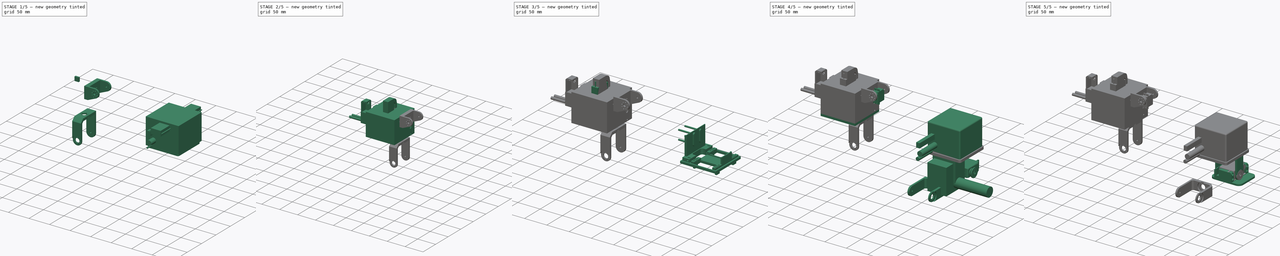
[diagram: build sequence overview — one tinted view per stage of 5, left to right]
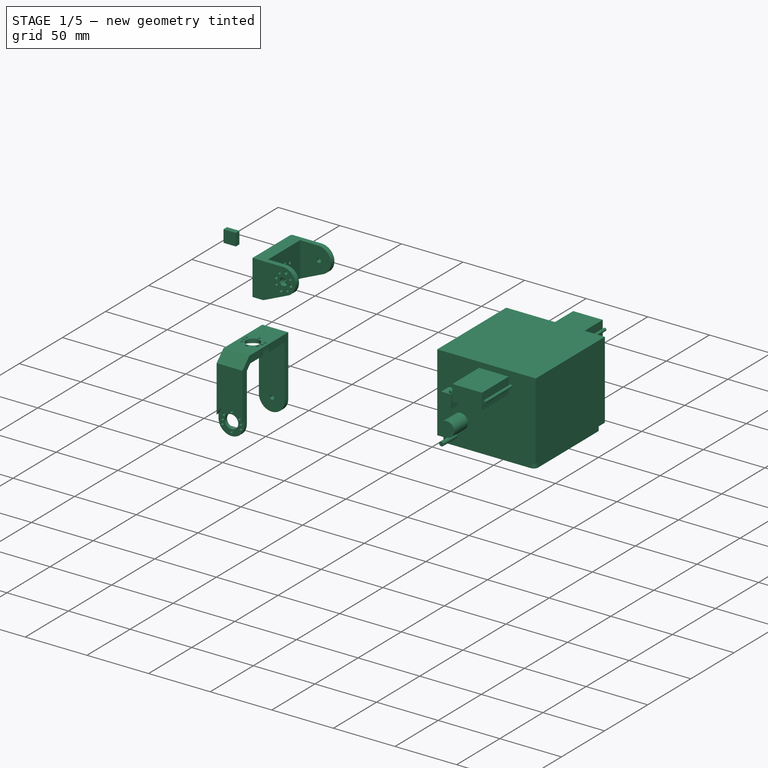
[diagram: stage 1 of 5 — iso view after this stage's code; geometry added in this stage tinted green]
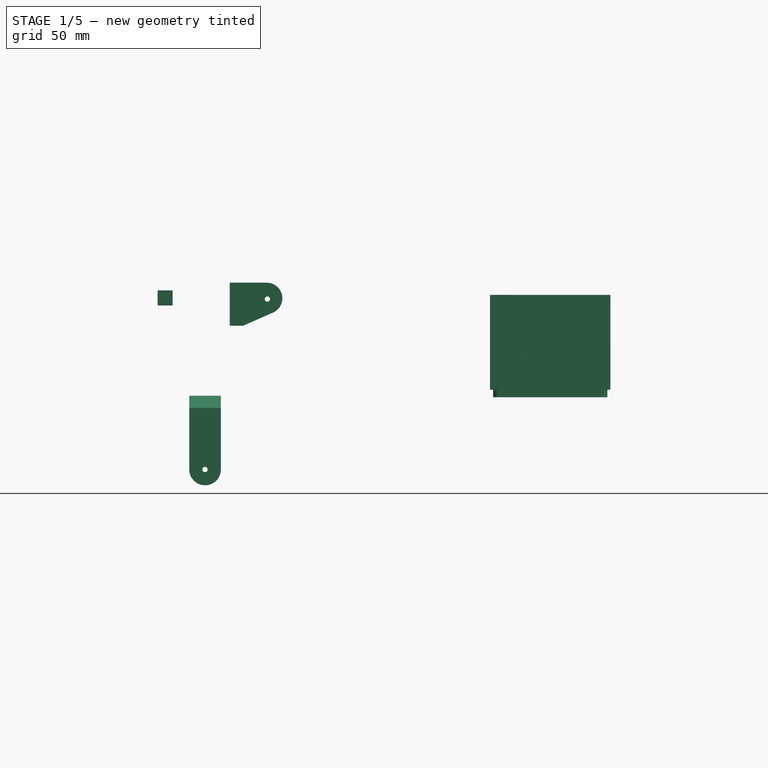
[diagram: stage 1 of 5 — front view after this stage's code; geometry added in this stage tinted green]
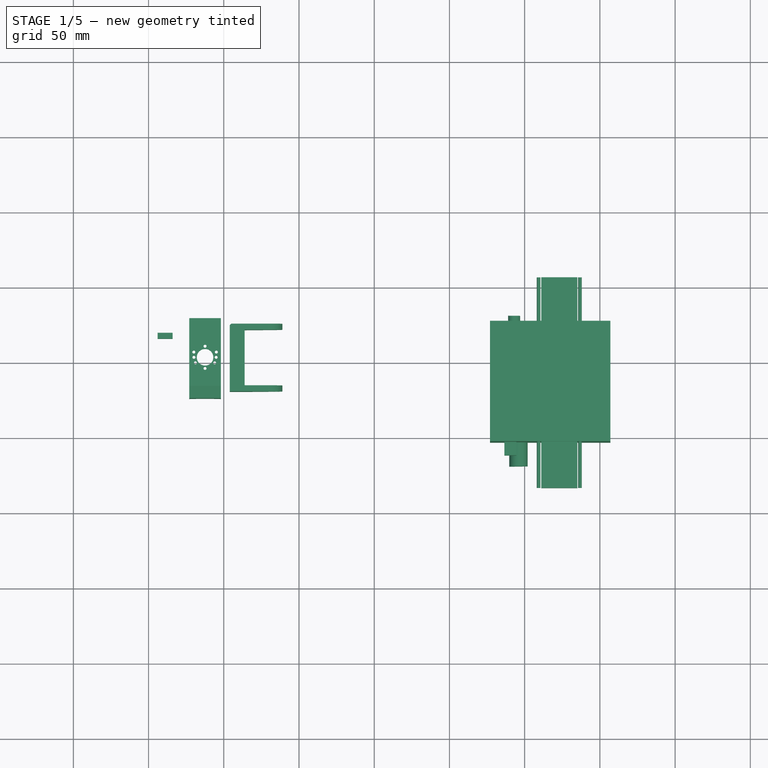
[diagram: stage 1 of 5 — top view after this stage's code; geometry added in this stage tinted green]
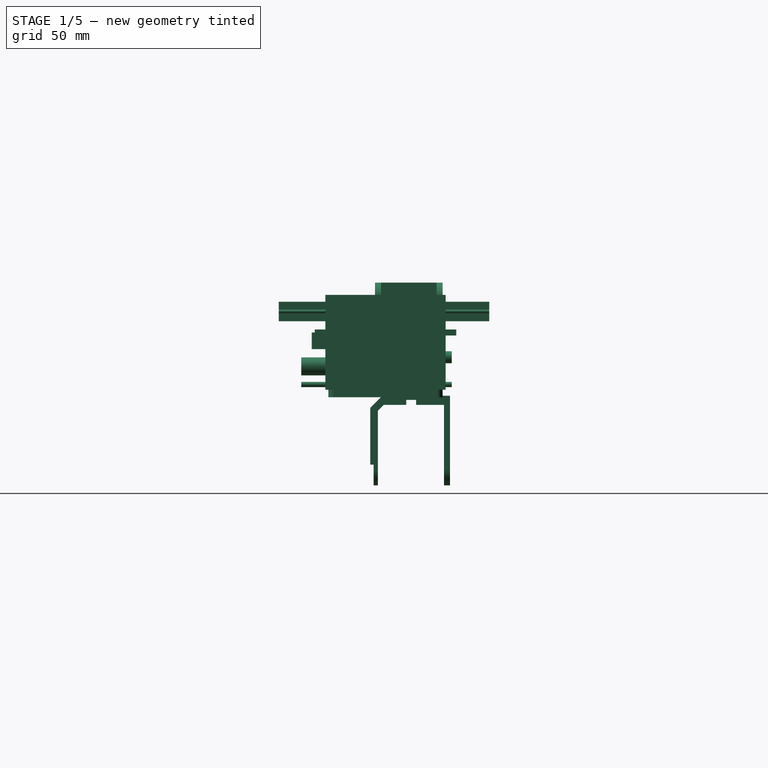
[diagram: stage 1 of 5 — right view after this stage's code; geometry added in this stage tinted green]
FCSTD DOCUMENT  (FreeCAD 0.16R6706 (Git))
Label: zowimanoid_template
License: CC-BY 3.0
LicenseURL: http://creativecommons.org/licenses/by/3.0/
objects: Part::Feature×135, Part::Cylinder×55, Part::Cut×53, Part::Box×43, Part::MultiFuse×37, Sketcher::SketchObject×19, Part::FeaturePython×16, App::DocumentObjectGroup×10, PartDesign::Pocket×10, Part::Mirroring×9, Part::Fillet×9, PartDesign::Pad×9, Part::Chamfer×6, Part::Prism×3, PartDesign::Fillet×2, Part::MultiCommon×2
note: 427 computed .brp shape members not serialized (recipe doc carries the construction recipe); baked Part::Feature solids carry a one-line shape summary decoded from their .brp

FEATURE [Sketcher::SketchObject] Sketch010
  Placement = pos=(-1,0,0) rot=(0.57735,0.57735,0.57735;2.0944rad)
  sketch-geometry (5):
    g0: LineSegment StartX=-35.7295 StartY=116.767 StartZ=0 EndX=-15.7739 EndY=107.988 EndZ=0
    g1: LineSegment StartX=-7.00034 StartY=107.988 StartZ=0 EndX=-7.00034 EndY=136.643 EndZ=0
    g2: LineSegment StartX=-7.00034 StartY=136.643 StartZ=0 EndX=-31.551 EndY=136.643 EndZ=0
    g3: ArcOfCircle CenterX=-31.551 CenterY=126.266 CenterZ=0 NormalX=0 NormalY=0 NormalZ=1 Radius=10.3774 StartAngle=1.5708 EndAngle=4.29797
    g4: LineSegment StartX=-15.7739 StartY=107.988 StartZ=0 EndX=-7.00034 EndY=107.988 EndZ=0
  constraints (10):
    c: Coincident(g1,g2)
    c: Coincident(g2,g3)
    c: Coincident(g0,g3)
    c: Horizontal(g2)
    c: Vertical(g1)
    c: Tangent(g3,g0)
    c: Tangent(g3,g2)
    c: Coincident(g1,g4)
    c: Coincident(g0,g4)
    c: Horizontal(g4)
FEATURE [PartDesign::Pad] Pad005
  Length = 42
  Length2 = 100
  Placement = pos=(-1,0,0) rot=(0.57735,0.57735,0.57735;2.0944rad)
  Sketch = -> Sketch010
  Type = 0
FEATURE [Sketcher::SketchObject] Sketch012
  Placement = pos=(3,-12,-1) rot=(0.57735,0.57735,0.57735;2.0944rad)
  sketch-geometry (4):
    g0: LineSegment StartX=-4.88207 StartY=101.941 StartZ=0 EndX=-4.88207 EndY=138.56 EndZ=0
    g1: LineSegment StartX=-4.88207 StartY=138.56 StartZ=0 EndX=-40.5711 EndY=142.374 EndZ=0
    g2: LineSegment StartX=-40.5711 StartY=142.374 StartZ=0 EndX=-40.5711 EndY=120.688 EndZ=0
    g3: LineSegment StartX=-40.5711 StartY=120.688 StartZ=0 EndX=-4.88207 EndY=101.941 EndZ=0
  constraints (6):
    c: Coincident(g0,g1)
    c: Coincident(g1,g2)
    c: Coincident(g2,g3)
    c: Coincident(g0,g3)
    c: Vertical(g0)
    c: Vertical(g2)
FEATURE [PartDesign::Pad] Pad007
  Length = 34
  Length2 = 100
  Placement = pos=(3,-12,-1) rot=(0.57735,0.57735,0.57735;2.0944rad)
  Sketch = -> Sketch012
  Type = 0
FEATURE [Part::Cut] Cut085
  Base = -> Pad005
  Tool = -> Pad007
FEATURE [Part::Cylinder] Cylinder056  label="Cilindro"
  Angle = 360
  Height = 10
  Placement = pos=(17.25,-4,120) rot=(1,0,0;1.5708rad)
  Radius = 10
FEATURE [Part::Cut] Cut086
  Base = -> Cut085
  Tool = -> Cylinder056
FEATURE [Part::Cylinder] Cylinder057  label="Cilindro001"
  Angle = 360
  Height = 13
  Placement = pos=(17.25,-6,120) rot=(1,0,0;1.5708rad)
  Radius = 3
FEATURE [Part::Cut] Cut087
  Base = -> Cut086
  Tool = -> Cylinder057
FEATURE [Part::Chamfer] Chamfer104
  Base = -> Cut087
  Edges = 1 edges r=1: [Edge10]
FEATURE [Part::Cylinder] Cylinder058  label="Cilindro002"
  Angle = 360
  Height = 22
  Placement = pos=(20.25,-32,125.75) rot=(0,1,0;1.5708rad)
  Radius = 3
FEATURE [Part::Cut] Cut088
  Base = -> Chamfer104
  Tool = -> Cylinder058
FEATURE [Part::Cylinder] Cylinder059  label="Cilindro003"
  Angle = 360
  Height = 22
  Placement = pos=(20.25,-34,132.75) rot=(0,1,0;1.5708rad)
  Radius = 1.25
FEATURE [Part::Cylinder] Cylinder060  label="Cilindro004"
  Angle = 360
  Height = 22
  Placement = pos=(20.25,-30,118.75) rot=(0,1,0;1.5708rad)
  Radius = 1.25
FEATURE [Part::Cylinder] Cylinder061  label="Cilindro005"
  Angle = 360
  Height = 22
  Placement = pos=(20.25,-38,124.25) rot=(0,1,0;1.5708rad)
  Radius = 1.25
FEATURE [Part::Cylinder] Cylinder062  label="Cilindro006"
  Angle = 360
  Height = 22
  Placement = pos=(20.25,-26,127.25) rot=(0,1,0;1.5708rad)
  Radius = 1.25
FEATURE [Part::MultiFuse] Fusion046
  Shapes = -> [Cylinder059,Cylinder061,Cylinder062,Cylinder060]
FEATURE [Part::Cylinder] Cylinder063  label="Cilindro007"
  Angle = 360
  Height = 22
  Placement = pos=(20.25,-34,132.75) rot=(0,1,0;1.5708rad)
  Radius = 1.25
FEATURE [Part::Cylinder] Cylinder064  label="Cilindro008"
  Angle = 360
  Height = 22
  Placement = pos=(20.25,-30,118.75) rot=(0,1,0;1.5708rad)
  Radius = 1.25
FEATURE [Part::Cylinder] Cylinder065  label="Cilindro009"
  Angle = 360
  Height = 22
  Placement = pos=(20.25,-38,124.25) rot=(0,1,0;1.5708rad)
  Radius = 1.25
FEATURE [Part::Cylinder] Cylinder066  label="Cilindro010"
  Angle = 360
  Height = 22
  Placement = pos=(20.25,-26,127.25) rot=(0,1,0;1.5708rad)
  Radius = 1.25
FEATURE [Part::MultiFuse] Fusion047
  Placement = pos=(114.108,21,33.6462) rot=(0.280624,-0.280624,-0.917878;1.65638rad)
  Shapes = -> [Cylinder063,Cylinder065,Cylinder066,Cylinder064]
FEATURE [Part::Cut] Cut089
  Base = -> Cut088
  Tool = -> Fusion047
FEATURE [Part::Cut] Cut090
  Base = -> Cut089
  Tool = -> Fusion046
FEATURE [Part::Cylinder] Cylinder067  label="Cilindro011"
  Angle = 360
  Height = 22
  Placement = pos=(-4.75,-32,125.75) rot=(0,1,0;1.5708rad)
  Radius = 1.75
FEATURE [Part::Cut] Cut091  label="shoulder-src"
  Base = -> Cut090
  Tool = -> Cylinder067
FEATURE [Part::Box] Box057  label="Cube078"
  Height = 66
  Length = 76
  Placement = pos=(-21,-2,87) rot=(0,0,1;0rad)
  Width = 76
FEATURE [Part::Fillet] Fillet018013003
  Base = -> Box057
  Edges = 8 edges r=3.5: [Edge1,Edge2,Edge3,Edge5,Edge6,Edge7,Edge10,Edge12]
  Placement = pos=(0,0,-24) rot=(0,0,1;0rad)
FEATURE [Part::Cylinder] Cylinder078  label="Cylinder105"
  Angle = 360
  Height = 31
  Placement = pos=(-8.5,11,71.5) rot=(1,0,0;1.5708rad)
  Radius = 1.75
FEATURE [Part::Cylinder] Cylinder079  label="Cylinder106"
  Angle = 360
  Height = 31
  Placement = pos=(-8.5,80,71.5) rot=(1,0,0;1.5708rad)
  Radius = 1.75
FEATURE [Part::Cylinder] Cylinder080  label="Cylinder107"
  Angle = 360
  Height = 31
  Placement = pos=(-4,11,83.5) rot=(1,0,0;1.5708rad)
  Radius = 6
FEATURE [Part::Box] Box058  label="Cube079"
  Height = 11
  Length = 8
  Placement = pos=(-13.5,-13,95) rot=(0,0,1;0rad)
  Width = 24
FEATURE [Part::Cylinder] Cylinder083  label="Cylinder108"
  Angle = 360
  Height = 31
  Placement = pos=(-7,80,89.6) rot=(1,0,0;1.5708rad)
  Radius = 4
FEATURE [Part::Box] Box059  label="Cube080"
  Height = 49
  Length = 17
  Placement = pos=(-14,-2.5,75) rot=(0,0,1;0rad)
  Width = 77
FEATURE [Part::Fillet] Fillet018013005
  Base = -> Box059
  Edges = 12 edges r=2: [Edge1,Edge2,Edge3,Edge4,Edge5,Edge6,Edge7,Edge8,Edge9,Edge10,Edge11,Edge12]
FEATURE [Part::Box] Box060  label="Cubo007"
  Height = 63
  Length = 80
  Placement = pos=(-23,-4,68) rot=(0,0,1;0rad)
  Width = 80
FEATURE [Part::MultiFuse] Fusion061
  Shapes = -> [Box058,Cylinder080,Cylinder078,Fillet018013005,Cylinder083,Cylinder079]
FEATURE [Sketcher::SketchObject] Sketch017
  Placement = pos=(-0.25,-35,0) rot=(1,0,0;1.5708rad)
  sketch-geometry (7):
    g0: Circle CenterX=37 CenterY=120 CenterZ=0 NormalX=0 NormalY=0 NormalZ=1 Radius=1.2
    g1: Circle CenterX=9.5 CenterY=120 CenterZ=0 NormalX=0 NormalY=0 NormalZ=1 Radius=1.2
    g2: LineSegment StartX=35.25 StartY=126.5 StartZ=0 EndX=11.25 EndY=126.5 EndZ=0
    g3: LineSegment StartX=11.25 StartY=126.5 StartZ=0 EndX=11.25 EndY=113.5 EndZ=0
    g4: LineSegment StartX=11.25 StartY=113.5 StartZ=0 EndX=35.25 EndY=113.5 EndZ=0
    g5: LineSegment StartX=35.25 StartY=113.5 StartZ=0 EndX=35.25 EndY=126.5 EndZ=0
    g6: LineSegment [constr] StartX=9.5 StartY=120 StartZ=0 EndX=37 EndY=120 EndZ=0
  constraints (20):
    c: Coincident(g2,g3)
    c: Coincident(g3,g4)
    c: Coincident(g4,g5)
    c: Coincident(g5,g2)
    c: Horizontal(g2)
    c: Horizontal(g4)
    c: Vertical(g3)
    c: Vertical(g5)
    c: Distance(g2) = 24
    c: Distance(g5) = 13
    c: Radius(g1) = 1.2
    c: Equal(g1,g0)
    c: Coincident(g0,g6)
    c: Coincident(g1,g6)
    c: Distance(g6) = 27.5
    c: Horizontal(g6)
    c: DistanceX(g-1,g1) = 9.5
    c: DistanceY(g1) = 120
    c: DistanceY(g1,g3) = -6.5
    c: DistanceX(g1,g2) = 1.75
FEATURE [PartDesign::Pad] Pad012
  Length = 140
  Length2 = 100
  Placement = pos=(-0.25,-35,0) rot=(1,0,0;1.5708rad)
  Reversed = true
  Sketch = -> Sketch017
  Type = 0
FEATURE [Part::FeaturePython] Clone020  label="right-shoulder"  # Draft clone (typed FeaturePython)
  Objects = -> [Cut091]
  Placement = pos=(-275,70,2.5) rot=(0,0,-1;1.5708rad)
  Scale = (1,1,1)
FEATURE [Part::Mirroring] Part__Mirroring007012  label="left-shoulder"
  Base = (0,0,0)
  Normal = (0,1,0)
  Placement = pos=(-478,0,0) rot=(0,0,1;3.14159rad)
  Source = -> Clone020
FEATURE [Part::Box] Box065  label="Cubo"
  Height = 4
  Length = 10
  Placement = pos=(13,-11,104) rot=(0,0,1;0rad)
  Width = 94
FEATURE [Part::Box] Box066  label="Cubo012"
  Height = 10
  Length = 10
  Placement = pos=(-244,64,124) rot=(0,0,1;0rad)
  Width = 4
FEATURE [Part::Feature] Part__Mirroring007013  label="pata-I001"
  Placement = pos=(-202.95,69.9,1.95) rot=(0,0,-1;1.5708rad)
  shape: bbox 21 x 53 x 59.5 mm, 32 faces (baked)
FEATURE [Part::Feature] Part__Mirroring007014  label="leg-body"
  Placement = pos=(-255.95,69.7,1.95) rot=(0,0,-1;1.5708rad)
  shape: bbox 21 x 53 x 59.5 mm, 32 faces (baked)
FEATURE [Part::FeaturePython] Clone028  label="Clone of left-shoulder"  # Draft clone (typed FeaturePython)
  Objects = -> [Part__Mirroring007012]
  Placement = pos=(-478,0,0) rot=(0,0,1;3.14159rad)
  Scale = (1,1,1)
FEATURE [Part::FeaturePython] Clone029  label="Clone of left-shoulder001"  # Draft clone (typed FeaturePython)
  Objects = -> [Part__Mirroring007012]
  Placement = pos=(-478,3,0) rot=(0,0,1;3.14159rad)
  Scale = (1,1,1)
FEATURE [Part::Box] Box071  label="Cube081"
  Height = 35
  Length = 47
  Placement = pos=(-205.102,65.2498,108.143) rot=(0,0,1;0rad)
  Width = 42
FEATURE [Part::Box] Box072  label="Cube082"
  Height = 35
  Length = 47
  Placement = pos=(-205.102,24.2498,108.143) rot=(0,0,1;0rad)
  Width = 42
FEATURE [Part::MultiCommon] Common
  Shapes = -> [Box071,Clone029]
FEATURE [Part::MultiCommon] Common001
  Shapes = -> [Box072,Clone028]
FEATURE [Part::MultiFuse] Fusion067  label="bigger_shoulder"
  Shapes = -> [Common001,Common]
FEATURE [Sketcher::SketchObject] Sketch022
  ExternalGeometry = -> [Fusion067]
  Placement = pos=(-186.118,0,0) rot=(0.57735,0.57735,0.57735;2.0944rad)
  Support = -> Fusion067 [Face9]
  sketch-geometry (6):
    g0: Circle CenterX=52.75 CenterY=129 CenterZ=0 NormalX=0 NormalY=0 NormalZ=1 Radius=1
    g1: Circle CenterX=59.25 CenterY=122.5 CenterZ=0 NormalX=0 NormalY=0 NormalZ=1 Radius=1
    g2: Circle CenterX=52.75 CenterY=116 CenterZ=0 NormalX=0 NormalY=0 NormalZ=1 Radius=1
    g3: Circle CenterX=46.25 CenterY=122.5 CenterZ=0 NormalX=0 NormalY=0 NormalZ=1 Radius=1
    g4: LineSegment [constr] StartX=52.75 StartY=129 StartZ=0 EndX=52.75 EndY=116 EndZ=0
    g5: LineSegment [constr] StartX=59.25 StartY=122.5 StartZ=0 EndX=46.25 EndY=122.5 EndZ=0
  constraints (16):
    c: Radius(g3) = 1
    c: Equal(g3,g0)
    c: Equal(g3,g1)
    c: Equal(g3,g2)
    c: Coincident(g4,g0)
    c: Coincident(g4,g2)
    c: Vertical(g4)
    c: Coincident(g5,g1)
    c: Coincident(g5,g3)
    c: Horizontal(g5)
    c: Symmetric(g1,g3,g4)
    c: Symmetric(g2,g0,g5)
    c: DistanceY(g4,g4) = 13
    c: DistanceX(g5,g5) = 13
    c: DistanceY(g-4,g0) = 6.5
    c: DistanceX(g3,g-4) = 6.5
FEATURE [PartDesign::Pocket] Pocket018
  Length = 3
  Sketch = -> Sketch022
  Type = 0
FEATURE [Sketcher::SketchObject] Sketch023
  ExternalGeometry = -> [Pocket018]
  Placement = pos=(0,29,0) rot=(1,0,0;1.5708rad)
  Support = -> Pocket018 [Face24]
  sketch-geometry (6):
    g0: Circle CenterX=-174.22 CenterY=133.896 CenterZ=0 NormalX=0 NormalY=0 NormalZ=1 Radius=1
    g1: Circle CenterX=-165.354 CenterY=131.47 CenterZ=0 NormalX=0 NormalY=0 NormalZ=1 Radius=1
    g2: Circle CenterX=-167.78 CenterY=122.604 CenterZ=0 NormalX=0 NormalY=0 NormalZ=1 Radius=1
    g3: Circle CenterX=-176.646 CenterY=125.03 CenterZ=0 NormalX=0 NormalY=0 NormalZ=1 Radius=1
    g4: LineSegment [constr] StartX=-176.646 StartY=125.03 StartZ=0 EndX=-165.354 EndY=131.47 EndZ=0
    g5: LineSegment [constr] StartX=-167.78 StartY=122.604 StartZ=0 EndX=-174.22 EndY=133.896 EndZ=0
  constraints (14):
    c: Coincident(g4,g1)
    c: Coincident(g5,g2)
    c: Coincident(g5,g0)
    c: Perpendicular(g4,g5)
    c: Distance(g4) = 13
    c: Distance(g5) = 13
    c: Symmetric(g1,g3,g5)
    c: Radius(g3) = 1
    c: Equal(g3,g0)
    c: Equal(g3,g1)
    c: Equal(g3,g2)
    c: Coincident(g3,g4)
    c: Symmetric(g4,g4,g-3)
    c: Symmetric(g5,g5,g-3)
FEATURE [PartDesign::Pocket] Pocket019  label="leftShoulder(large)_more_holes"
  Length = 4
  Sketch = -> Sketch023
  Type = 0
FEATURE [Sketcher::SketchObject] Sketch024
  ExternalGeometry = -> [Part__Mirroring007013]
  Placement = pos=(-202.95,28.1,1.95) rot=(1,0,0;1.5708rad)
  Support = -> Part__Mirroring007013 [Face6]
  sketch-geometry (9):
    g0: Circle CenterX=-16.85 CenterY=13 CenterZ=0 NormalX=0 NormalY=0 NormalZ=1 Radius=1
    g1: Circle CenterX=-15.8653 CenterY=16.675 CenterZ=0 NormalX=0 NormalY=0 NormalZ=1 Radius=1
    g2: Circle CenterX=-3.13471 CenterY=16.675 CenterZ=0 NormalX=0 NormalY=0 NormalZ=1 Radius=1
    g3: Circle CenterX=-2.15 CenterY=13 CenterZ=0 NormalX=0 NormalY=0 NormalZ=1 Radius=1
    g4: Circle CenterX=-9.5 CenterY=5.65 CenterZ=0 NormalX=0 NormalY=0 NormalZ=1 Radius=1
    g5: LineSegment [constr] StartX=-16.85 StartY=13 StartZ=0 EndX=-2.15 EndY=13 EndZ=0
    g6: LineSegment [constr] StartX=-9.5 StartY=20.35 StartZ=0 EndX=-9.5 EndY=5.65 EndZ=0
    g7: LineSegment [constr] StartX=-15.8653 StartY=16.675 StartZ=0 EndX=-9.5 EndY=13 EndZ=0
    g8: LineSegment [constr] StartX=-9.5 StartY=13 StartZ=0 EndX=-3.13471 EndY=16.675 EndZ=0
  constraints (23):
    c: Radius(g1) = 1
    c: Equal(g1,g2)
    c: Equal(g1,g3)
    c: Equal(g1,g4)
    c: Equal(g1,g0)
    c: Symmetric(g0,g3,g-3)
    c: Coincident(g5,g3)
    c: Horizontal(g5)
    c: Coincident(g0,g5)
    c: Coincident(g6,g-4)
    c: Vertical(g6)
    c: Symmetric(g6,g4,g-3)
    c: Coincident(g6,g4)
    c: DistanceX(g5,g5) = 14.7
    c: DistanceY(g6,g6) = 14.7
    c: Coincident(g7,g1)
    c: Coincident(g7,g-3)
    c: Coincident(g8,g7)
    c: Coincident(g8,g2)
    c: Angle(g5,g8) = 0.523599
    c: Angle(g7,g5) = 0.523599
    c: Distance(g7) = 7.35
    c: Distance(g8) = 7.35
FEATURE [PartDesign::Pocket] Pocket020
  Length = 3
  Placement = pos=(-202.95,69.9,1.95) rot=(0,0,-1;1.5708rad)
  Sketch = -> Sketch024
  Type = 0
FEATURE [Sketcher::SketchObject] Sketch025
  ExternalGeometry = -> [Pocket020]
  Placement = pos=(-202.95,69.9,63.95) rot=(0,0,-1;1.5708rad)
  Support = -> Pocket020 [Face5]
  sketch-geometry (9):
    g0: Circle CenterX=9.65 CenterY=-9.5 CenterZ=0 NormalX=0 NormalY=0 NormalZ=1 Radius=1
    g1: Circle CenterX=17 CenterY=-2.15 CenterZ=0 NormalX=0 NormalY=0 NormalZ=1 Radius=1
    g2: Circle CenterX=20.675 CenterY=-3.13471 CenterZ=0 NormalX=0 NormalY=0 NormalZ=1 Radius=1
    g3: Circle CenterX=20.675 CenterY=-15.8653 CenterZ=0 NormalX=0 NormalY=0 NormalZ=1 Radius=1
    g4: Circle CenterX=17 CenterY=-16.85 CenterZ=0 NormalX=0 NormalY=0 NormalZ=1 Radius=1
    g5: LineSegment [constr] StartX=17 StartY=-2.15 StartZ=0 EndX=17 EndY=-16.85 EndZ=0
    g6: LineSegment [constr] StartX=9.65 StartY=-9.5 StartZ=0 EndX=24.35 EndY=-9.5 EndZ=0
    g7: LineSegment [constr] StartX=20.675 StartY=-15.8653 StartZ=0 EndX=17 EndY=-9.5 EndZ=0
    g8: LineSegment [constr] StartX=17 StartY=-9.5 StartZ=0 EndX=20.675 EndY=-3.13471 EndZ=0
  constraints (22):
    c: Radius(g1) = 1
    c: Equal(g1,g2)
    c: Equal(g1,g3)
    c: Equal(g1,g4)
    c: Equal(g1,g0)
    c: Symmetric(g1,g4,g-3)
    c: Coincident(g5,g1)
    c: Coincident(g5,g4)
    c: Vertical(g5)
    c: Coincident(g6,g-4)
    c: Horizontal(g6)
    c: Coincident(g0,g6)
    c: Symmetric(g0,g6,g-3)
    c: DistanceY(g5,g5) = 14.7
    c: Coincident(g7,g3)
    c: Coincident(g7,g-3)
    c: Coincident(g8,g7)
    c: Coincident(g8,g2)
    c: Angle(g8,g5) = 0.523599
    c: Angle(g5,g7) = 0.523599
    c: Distance(g8) = 7.35
    c: Distance(g7) = 7.35
FEATURE [PartDesign::Pocket] Pocket021  label="LeftLeg_more_holes"
  Length = 3
  Placement = pos=(-202.95,69.9,1.95) rot=(0,0,-1;1.5708rad)
  Sketch = -> Sketch025
  Type = 0
FEATURE [App::DocumentObjectGroup] Group017  label="Assembly"
  Group = -> [Fusion043,Part__Mirroring007012,Part__Mirroring007016,Part__Mirroring007014,Part__Mirroring007013,Part__Mirroring007015,Cut112,Clone025,Pocket020,Pocket021]
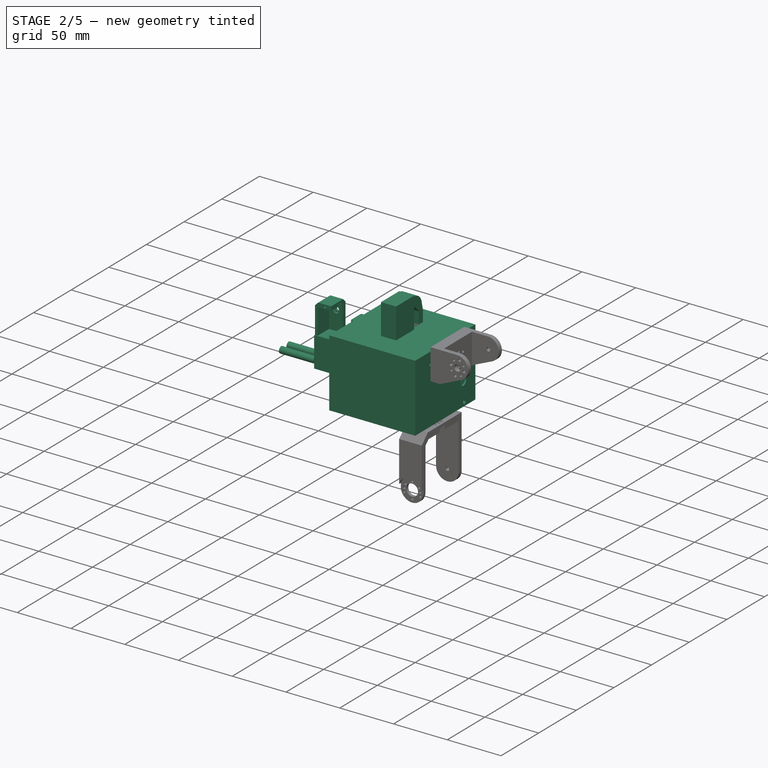
[diagram: stage 2 of 5 — iso view after this stage's code; geometry added in this stage tinted green]
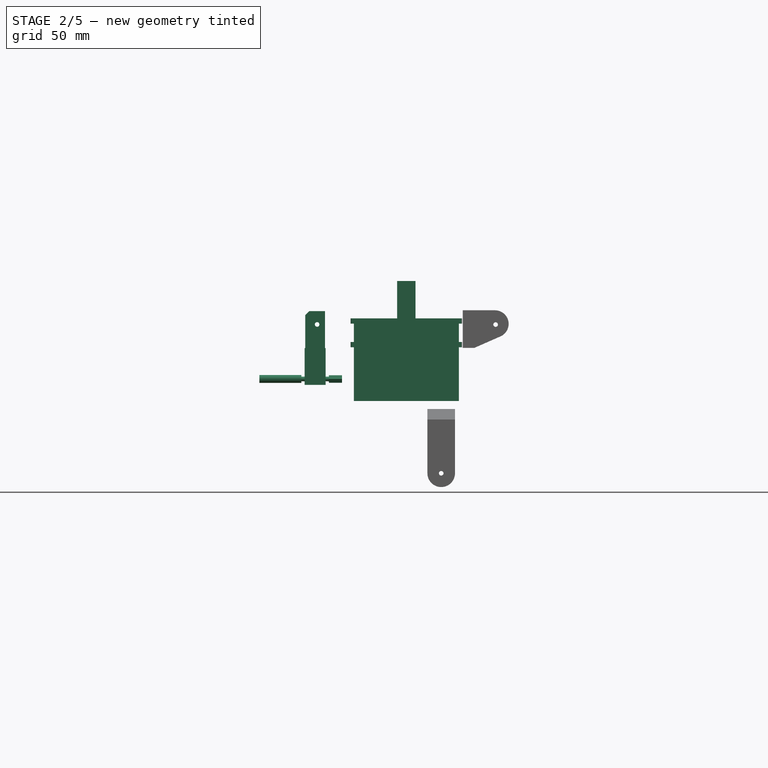
[diagram: stage 2 of 5 — front view after this stage's code; geometry added in this stage tinted green]
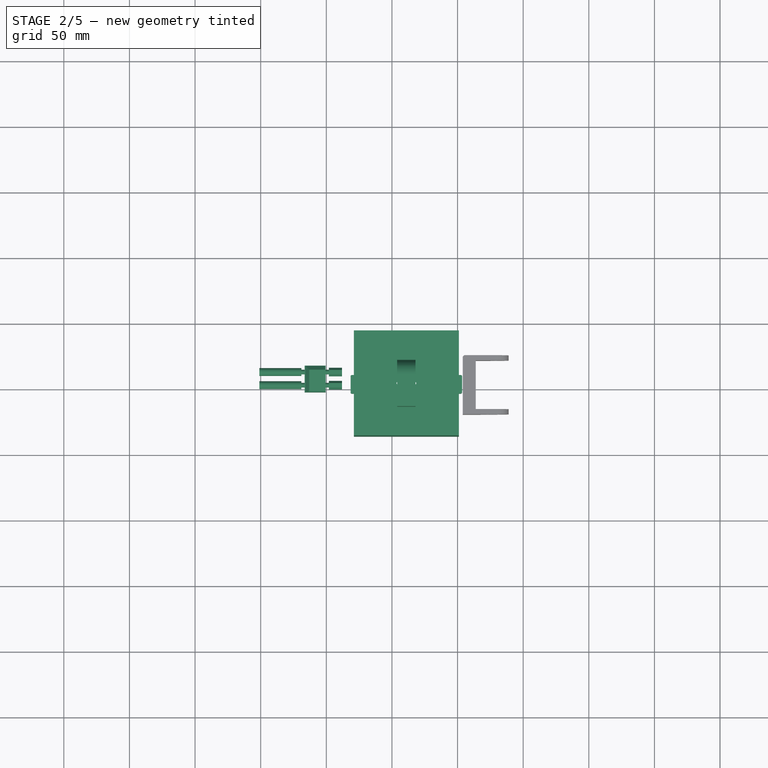
[diagram: stage 2 of 5 — top view after this stage's code; geometry added in this stage tinted green]
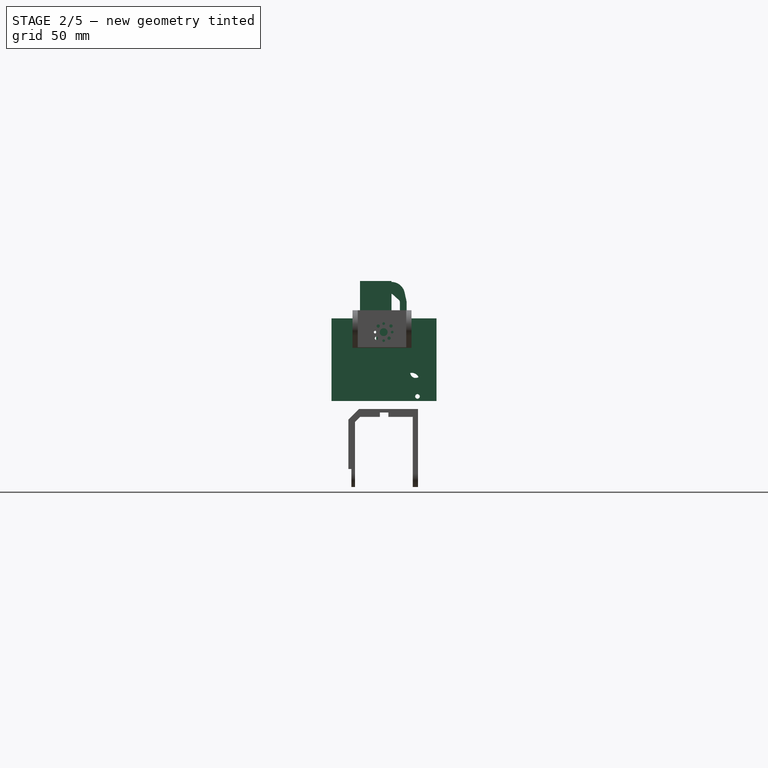
[diagram: stage 2 of 5 — right view after this stage's code; geometry added in this stage tinted green]
FEATURE [Part::Box] Box054  label="Cubo004"
  Height = 56
  Length = 19
  Placement = pos=(4,98,80) rot=(0,0,1;0rad)
  Width = 15
FEATURE [Part::Cylinder] Cylinder073  label="Cilindro014"
  Angle = 360
  Height = 32
  Placement = pos=(8,90,84) rot=(-1,0,0;1.5708rad)
  Radius = 1.75
FEATURE [Part::Cylinder] Cylinder074  label="Cilindro015"
  Angle = 360
  Height = 32
  Placement = pos=(18,90,84) rot=(-1,0,0;1.5708rad)
  Radius = 1.75
FEATURE [Part::MultiFuse] Fusion056
  Shapes = -> [Cylinder074,Cylinder073]
FEATURE [Part::Cut] Cut098
  Base = -> Box054
  Tool = -> Fusion056
FEATURE [Sketcher::SketchObject] Sketch015
  Placement = pos=(38,-16,143.25) rot=(0,1,0;1.5708rad)
  sketch-geometry (7):
    g0: Circle CenterX=37 CenterY=120 CenterZ=0 NormalX=0 NormalY=0 NormalZ=1 Radius=1
    g1: Circle CenterX=9.5 CenterY=120 CenterZ=0 NormalX=0 NormalY=0 NormalZ=1 Radius=1
    g2: LineSegment StartX=35.25 StartY=126.5 StartZ=0 EndX=11.25 EndY=126.5 EndZ=0
    g3: LineSegment StartX=11.25 StartY=126.5 StartZ=0 EndX=11.25 EndY=113.5 EndZ=0
    g4: LineSegment StartX=11.25 StartY=113.5 StartZ=0 EndX=35.25 EndY=113.5 EndZ=0
    g5: LineSegment StartX=35.25 StartY=113.5 StartZ=0 EndX=35.25 EndY=126.5 EndZ=0
    g6: LineSegment [constr] StartX=9.5 StartY=120 StartZ=0 EndX=37 EndY=120 EndZ=0
  constraints (20):
    c: Coincident(g2,g3)
    c: Coincident(g3,g4)
    c: Coincident(g4,g5)
    c: Coincident(g5,g2)
    c: Horizontal(g2)
    c: Horizontal(g4)
    c: Vertical(g3)
    c: Vertical(g5)
    c: Distance(g2) = 24
    c: Distance(g5) = 13
    c: Radius(g1) = 1
    c: Equal(g1,g0)
    c: Coincident(g0,g6)
    c: Coincident(g1,g6)
    c: Distance(g6) = 27.5
    c: Horizontal(g6)
    c: DistanceX(g-1,g1) = 9.5
    c: DistanceY(g1) = 120
    c: DistanceY(g1,g3) = -6.5
    c: DistanceX(g1,g2) = 1.75
FEATURE [PartDesign::Pad] Pad010
  Length = 30
  Length2 = 100
  Placement = pos=(38,-16,143.25) rot=(0,1,0;1.5708rad)
  Reversed = true
  Sketch = -> Sketch015
  Type = 0
FEATURE [Part::Cut] Cut099
  Base = -> Cut098
  Tool = -> Pad010
FEATURE [Part::Chamfer] Chamfer108
  Base = -> Cut099
  Edges = 2 edges r=3: [Edge2,Edge14]
FEATURE [Part::Cylinder] Cylinder075  label="Cilindro016"
  Angle = 360
  Height = 32
  Placement = pos=(-5,104,125.85) rot=(-0.57735,0.57735,-0.57735;2.0944rad)
  Radius = 1.75
FEATURE [Part::Prism] Prism001  label="Prisma"
  Circumradius = 3.3
  Height = 10
  Placement = pos=(6,104,125.85) rot=(-0.57735,0.57735,-0.57735;2.0944rad)
  Polygon = 6
FEATURE [Part::MultiFuse] Fusion057
  Shapes = -> [Prism001,Cylinder075]
FEATURE [Part::Cut] Cut100  label="arm-src"
  Base = -> Chamfer108
  Tool = -> Fusion057
FEATURE [Part::Cut] Cut103
  Base = -> Box060
  Tool = -> Fillet018013003
FEATURE [Part::Cut] Cut104
  Base = -> Cut103
  Tool = -> Fusion061
FEATURE [Part::Box] Box061  label="Cubo008"
  Height = 4
  Length = 14
  Placement = pos=(11,75.5,109) rot=(0,0,1;0rad)
  Width = 3
FEATURE [Part::Box] Box062  label="Cubo009"
  Height = 4
  Length = 14
  Placement = pos=(11,75.5,127) rot=(0,0,1;0rad)
  Width = 3
FEATURE [Part::Box] Box063  label="Cubo010"
  Height = 4
  Length = 14
  Placement = pos=(11,-6.5,109) rot=(0,0,1;0rad)
  Width = 3
FEATURE [Part::Box] Box064  label="Cubo011"
  Height = 4
  Length = 14
  Placement = pos=(11,-6.5,127) rot=(0,0,1;0rad)
  Width = 3
FEATURE [Part::Cut] Cut105
  Base = -> Cut104
  Tool = -> Pad012
FEATURE [Part::MultiFuse] Fusion062
  Shapes = -> [Cut105,Box062,Box061,Box063,Box064]
FEATURE [Part::Fillet] Fillet018013006  label="prebody"
  Base = -> Fusion062
  Edges = 8 edges r=1: [Edge2,Edge4,Edge64,Edge66,Edge160,Edge165,Edge170,Edge174]
FEATURE [Part::Feature] Pocket005  label="shaft-drill001"
  Placement = pos=(-171,34.6,128.25) rot=(1,0,0;1.5708rad)
  shape: bbox 18.7 x 4.1 x 18.7 mm, 22 faces (baked)
FEATURE [Part::Cylinder] Cylinder084  label="Cilindro019"
  Angle = 360
  Height = 13
  Placement = pos=(17.25,-6,120) rot=(1,0,0;1.5708rad)
  Radius = 3
FEATURE [Part::Cylinder] Cylinder085  label="Cilindro020"
  Angle = 360
  Height = 22
  Placement = pos=(20.25,-34,132.75) rot=(0,1,0;1.5708rad)
  Radius = 1.25
FEATURE [Part::Cylinder] Cylinder086  label="Cilindro021"
  Angle = 360
  Height = 22
  Placement = pos=(20.25,-30,118.75) rot=(0,1,0;1.5708rad)
  Radius = 1.25
FEATURE [Part::Cylinder] Cylinder087  label="Cilindro022"
  Angle = 360
  Height = 22
  Placement = pos=(20.25,-38,124.25) rot=(0,1,0;1.5708rad)
  Radius = 1.25
FEATURE [Part::Cylinder] Cylinder088  label="Cilindro023"
  Angle = 360
  Height = 22
  Placement = pos=(20.25,-26,127.25) rot=(0,1,0;1.5708rad)
  Radius = 1.25
FEATURE [Part::MultiFuse] Fusion063
  Placement = pos=(114.108,21,33.6462) rot=(0.280624,-0.280624,-0.917878;1.65638rad)
  Shapes = -> [Cylinder085,Cylinder087,Cylinder088,Cylinder086]
FEATURE [Part::MultiFuse] Fusion064
  Placement = pos=(-256.25,172.75,144) rot=(1,0,0;1.5708rad)
  Shapes = -> [Fusion063,Cylinder084]
FEATURE [Part::Cut] Cut107  label="body-src"
  Base = -> Fillet018013006
  Tool = -> Box065
FEATURE [Part::FeaturePython] Clone024  label="Clone of body-src"  # Draft clone (typed FeaturePython)
  Objects = -> [Cut107]
  Placement = pos=(-275,70,2) rot=(0,0,-1;1.5708rad)
  Scale = (1,1,1)
FEATURE [Part::Cut] Cut108
  Base = -> Clone024
  Tool = -> Fusion064
FEATURE [Part::Cut] Cut109  label="body-yaw-head"
  Base = -> Cut108
  Tool = -> Box066
FEATURE [Part::Box] Box068  label="Cubo014"
  Height = 29.5
  Length = 14
  Placement = pos=(-246,34.75,132) rot=(0,0,1;0rad)
  Width = 24
FEATURE [Sketcher::SketchObject] Sketch020
  Placement = pos=(-232,0,0) rot=(0.57735,0.57735,0.57735;2.0944rad)
  sketch-geometry (12):
    g0: LineSegment StartX=58.7463 StartY=151.629 StartZ=0 EndX=56.7806 EndY=151.629 EndZ=0
    g1: LineSegment StartX=56.7806 StartY=151.629 StartZ=0 EndX=56.7806 EndY=160.733 EndZ=0
    g2: LineSegment StartX=56.7806 StartY=160.733 StartZ=0 EndX=58.7463 EndY=160.733 EndZ=0
    g3: LineSegment StartX=59.4575 StartY=151.357 StartZ=0 EndX=64.2177 EndY=147.084 EndZ=0
    g4: LineSegment StartX=70.0652 StartY=146.486 StartZ=0 EndX=68.6741 EndY=152.764 EndZ=0
    g5: ArcOfCircle CenterX=58.7463 CenterY=150.564 CenterZ=0 NormalX=0 NormalY=0 NormalZ=1 Radius=10.1685 StartAngle=0.218051 EndAngle=1.5708
    g6: ArcOfCircle CenterX=58.7463 CenterY=150.564 CenterZ=0 NormalX=0 NormalY=0 NormalZ=1 Radius=1.06462 StartAngle=0.839342 EndAngle=1.5708
    g7: LineSegment StartX=65.069 StartY=145.176 StartZ=0 EndX=65.069 EndY=134.871 EndZ=0
    g8: LineSegment StartX=65.069 StartY=134.871 StartZ=0 EndX=70.2829 EndY=134.871 EndZ=0
    g9: LineSegment StartX=70.2829 StartY=134.871 StartZ=0 EndX=70.2829 EndY=144.497 EndZ=0
    g10: ArcOfCircle CenterX=61.0884 CenterY=144.497 CenterZ=0 NormalX=0 NormalY=0 NormalZ=1 Radius=9.19448 StartAngle=0 EndAngle=0.218051
    g11: ArcOfCircle CenterX=62.5052 CenterY=145.176 CenterZ=0 NormalX=0 NormalY=0 NormalZ=1 Radius=2.56379 StartAngle=0 EndAngle=0.839342
  constraints (24):
    c: Horizontal(g0)
    c: Coincident(g0,g1)
    c: Vertical(g1)
    c: Coincident(g1,g2)
    c: Horizontal(g2)
    c: Coincident(g5,g2)
    c: Coincident(g5,g4)
    c: Coincident(g6,g0)
    c: Coincident(g6,g3)
    c: Tangent(g2,g5)
    c: Equal(g0,g6)
    c: Tangent(g5,g4)
    c: Coincident(g5,g6)
    c: Tangent(g6,g3)
    c: Tangent(g6,g0)
    c: Vertical(g7)
    c: Coincident(g7,g8)
    c: Horizontal(g8)
    c: Coincident(g8,g9)
    c: Vertical(g9)
    c: Tangent(g4,g10) = -1.5708
    c: Tangent(g9,g10) = -1.5708
    c: Tangent(g3,g11) = 1.5708
    c: Tangent(g7,g11) = 1.5708
FEATURE [PartDesign::Pad] Pad015
  Length = 14
  Length2 = 100
  Placement = pos=(-232,0,0) rot=(0.57735,0.57735,0.57735;2.0944rad)
  Reversed = true
  Sketch = -> Sketch020
  Type = 0
FEATURE [Part::Box] Box069  label="Cubo015"
  Height = 7.5
  Length = 5
  Placement = pos=(9,97,127) rot=(0,0,1;0rad)
  Width = 12
FEATURE [Part::Cut] Cut114
  Base = -> Cut100
  Tool = -> Box069
FEATURE [App::DocumentObjectGroup] Grupo  label="src001"
  Group = -> [Cut091,Cut107,Fusion045,Cut113,Cut114]
FEATURE [App::DocumentObjectGroup] Group003  label="original-src"
  Group = -> [Part__Mirroring006,Part__Mirroring007,Group004,Group005,Grupo]
FEATURE [Part::Fillet] Fillet018013051
  Base = -> Cut114
  Edges = 1 edges r=0.5: [Edge83]
FEATURE [Part::FeaturePython] Clone026  label="Clone of arm"  # Draft clone (typed FeaturePython)
  Objects = -> [Fillet018013051]
  Placement = pos=(-275,70,2.5) rot=(0,0,-1;1.5708rad)
  Scale = (1,1,1)
FEATURE [Part::Mirroring] Part__Mirroring007016  label="Clone of arm001"
  Base = (0,0,0)
  Normal = (1,0,0)
  Placement = pos=(-478,0,0) rot=(0,0,1;0rad)
  Source = -> Clone026
FEATURE [Part::Prism] Prism  label="Prisma001"
  Circumradius = 3.3
  Height = 10
  Placement = pos=(18,85,84) rot=(-1,0,0;1.5708rad)
  Polygon = 6
FEATURE [Part::Prism] Prism002  label="Prisma002"
  Circumradius = 3.3
  Height = 10
  Placement = pos=(8,85,84) rot=(-1,0,0;1.5708rad)
  Polygon = 6
FEATURE [Part::Cylinder] Cylinder089  label="Cilindro017"
  Angle = 360
  Height = 32
  Placement = pos=(18,116,84) rot=(-1,0,0;1.5708rad)
  Radius = 3
FEATURE [Part::Cylinder] Cylinder090  label="Cilindro018"
  Angle = 360
  Height = 32
  Placement = pos=(8,116,84) rot=(-1,0,0;1.5708rad)
  Radius = 3
FEATURE [Part::Box] Box070  label="Cubo005"
  Height = 28
  Length = 20
  Placement = pos=(3.5,97.5,79.5) rot=(0,0,1;0rad)
  Width = 16
FEATURE [Part::Cylinder] Cylinder091  label="Cilindro013"
  Angle = 360
  Height = 32
  Placement = pos=(18,90,84) rot=(-1,0,0;1.5708rad)
  Radius = 1.75
FEATURE [Part::Cylinder] Cylinder092  label="Cilindro012"
  Angle = 360
  Height = 32
  Placement = pos=(8,90,84) rot=(-1,0,0;1.5708rad)
  Radius = 1.75
FEATURE [Part::MultiFuse] Fusion066  label="arm-positive-cut"
  Shapes = -> [Prism,Prism002,Cylinder089,Cylinder090,Box070,Cylinder091,Cylinder092]
FEATURE [Part::FeaturePython] Clone027  label="Clone of arm-positive-cut-left"  # Draft clone (typed FeaturePython)
  Objects = -> [Fusion066]
  Placement = pos=(-275,70,2.8) rot=(0,0,-1;1.5708rad)
  Scale = (1,1,1)
FEATURE [Part::Mirroring] Part__Mirroring007017  label="Clone of arm-positive-cut-right"
  Base = (0,0,0)
  Normal = (1,0,0)
  Placement = pos=(-478,0,0) rot=(0,0,1;0rad)
  Source = -> Clone027
FEATURE [Sketcher::SketchObject] Sketch021
  ExternalGeometry = -> [Cut109]
  Placement = pos=(0,0,133) rot=(0,0,1;0rad)
  Support = -> Cut109 [Face5]
  sketch-geometry (6):
    g0: Circle CenterX=-239 CenterY=59.25 CenterZ=0 NormalX=0 NormalY=0 NormalZ=1 Radius=1
    g1: Circle CenterX=-232.5 CenterY=52.75 CenterZ=0 NormalX=0 NormalY=0 NormalZ=1 Radius=1
    g2: Circle CenterX=-239 CenterY=46.25 CenterZ=0 NormalX=0 NormalY=0 NormalZ=1 Radius=1
    g3: Circle CenterX=-245.5 CenterY=52.75 CenterZ=0 NormalX=0 NormalY=0 NormalZ=1 Radius=1
    g4: LineSegment [constr] StartX=-239 StartY=59.25 StartZ=0 EndX=-239 EndY=46.25 EndZ=0
    g5: LineSegment [constr] StartX=-245.5 StartY=52.75 StartZ=0 EndX=-232.5 EndY=52.75 EndZ=0
  constraints (16):
    c: Radius(g3) = 1
    c: Equal(g3,g0)
    c: Equal(g3,g1)
    c: Equal(g3,g2)
    c: Coincident(g4,g0)
    c: Coincident(g4,g2)
    c: Coincident(g5,g3)
    c: Coincident(g5,g1)
    c: Horizontal(g5)
    c: Vertical(g4)
    c: Symmetric(g1,g3,g4)
    c: Symmetric(g0,g2,g5)
    c: Distance(g4) = 13
    c: Distance(g5) = 13
    c: DistanceX(g-3,g1) = 6.5
    c: DistanceY(g-3,g0) = 6.5
FEATURE [PartDesign::Pocket] Pocket017  label="body_more_holes"
  Length = 2
  Sketch = -> Sketch021
  Type = 0
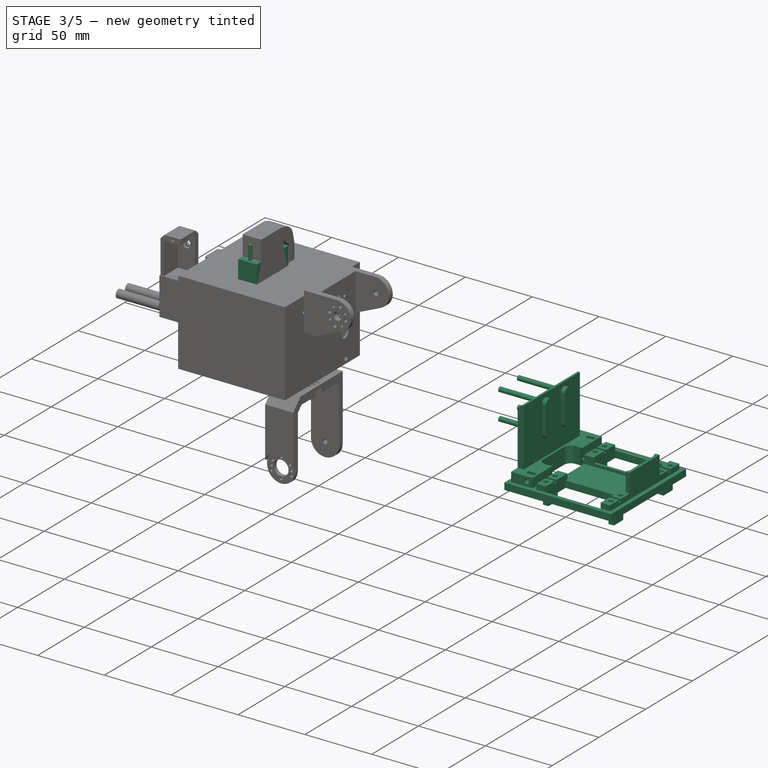
[diagram: stage 3 of 5 — iso view after this stage's code; geometry added in this stage tinted green]
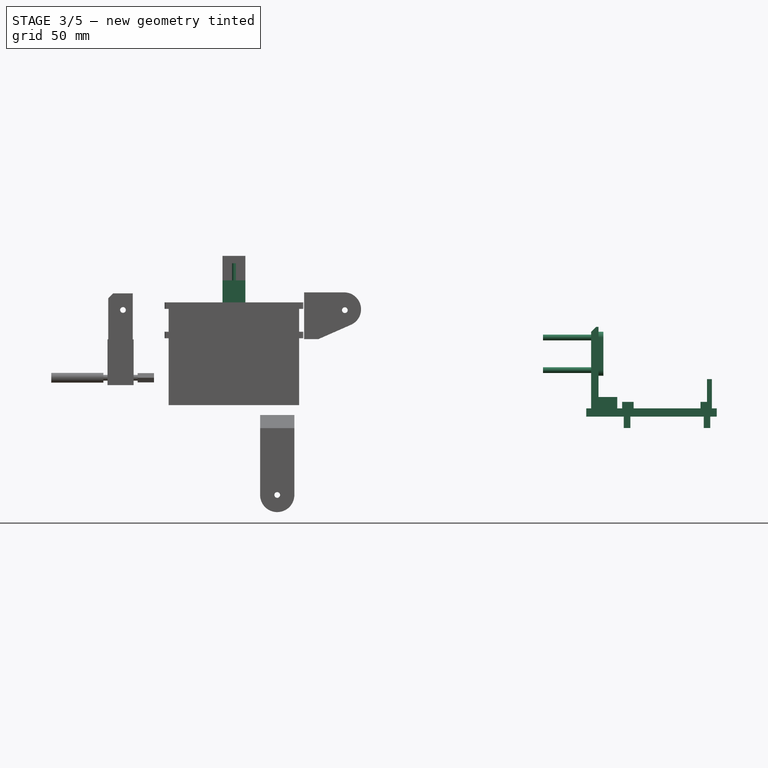
[diagram: stage 3 of 5 — front view after this stage's code; geometry added in this stage tinted green]
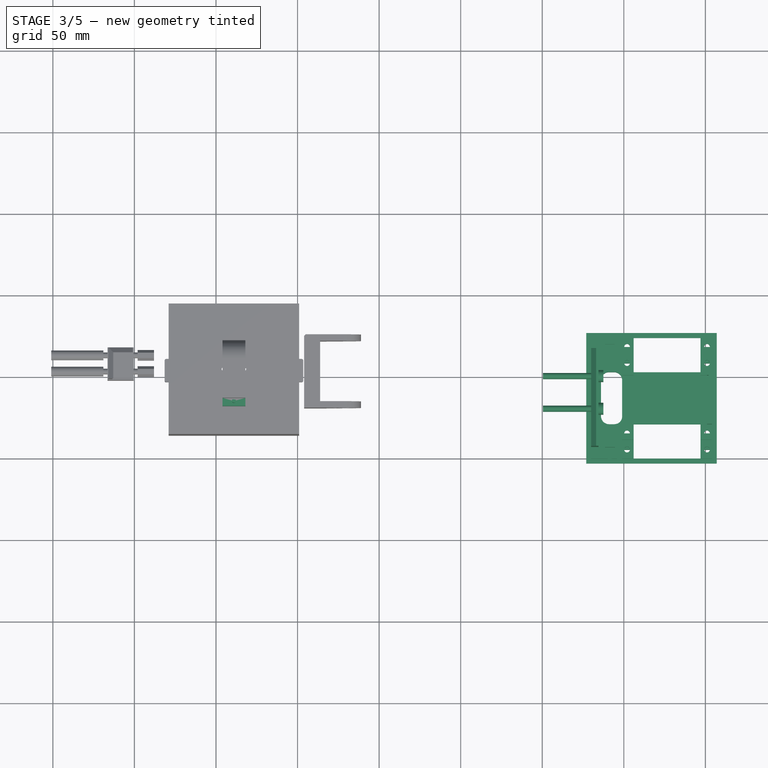
[diagram: stage 3 of 5 — top view after this stage's code; geometry added in this stage tinted green]
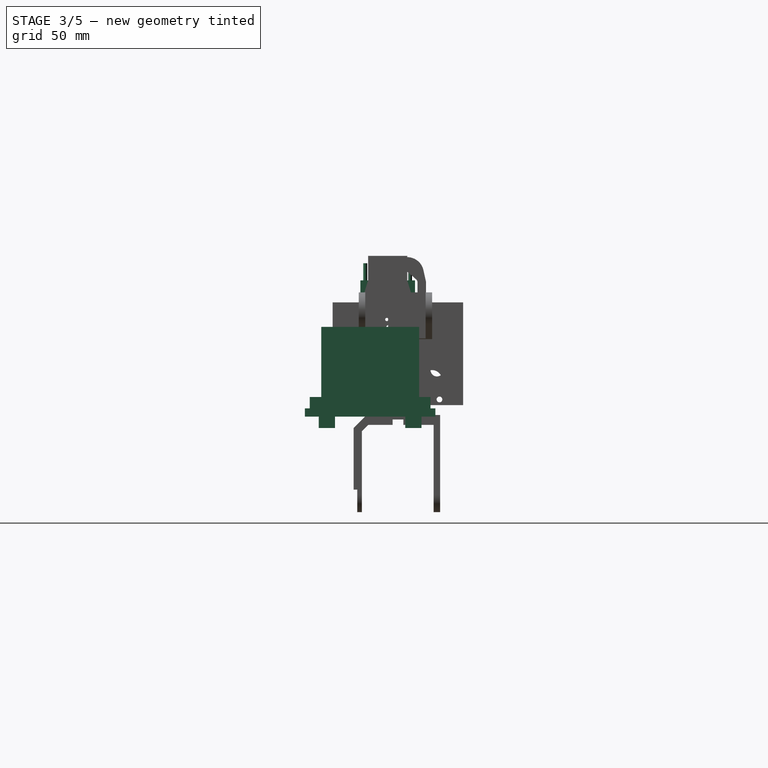
[diagram: stage 3 of 5 — right view after this stage's code; geometry added in this stage tinted green]
FEATURE [Part::Cylinder] Cylinder008  label="Joint-D010"
  Angle = 360
  Height = 21.5
  Placement = pos=(16,-24.5,7) rot=(0,1,0;1.5708rad)
  Radius = 1.75
FEATURE [Part::Cylinder] Cylinder009  label="Joint-D011"
  Angle = 360
  Height = 21.5
  Placement = pos=(32,-24.5,7) rot=(0,1,0;1.5708rad)
  Radius = 3
FEATURE [Part::Box] Box009  label="Cube009"
  Height = 5
  Length = 80
  Placement = pos=(-23,-4,63) rot=(0,0,1;0rad)
  Width = 80
FEATURE [Part::Box] Box010  label="Cube010"
  Height = 9
  Length = 7
  Placement = pos=(-1,-1,63) rot=(0,0,1;0rad)
  Width = 74
FEATURE [Part::Box] Box011  label="Cube011"
  Height = 9
  Length = 7
  Placement = pos=(47,-1,63) rot=(0,0,1;0rad)
  Width = 74
FEATURE [Part::MultiFuse] Fusion005
  Placement = pos=(44,39,98) rot=(0,1,0;1.5708rad)
  Shapes = -> [Cylinder009,Cylinder008]
FEATURE [Part::MultiFuse] Fusion008
  Placement = pos=(44,29,98) rot=(0,1,0;1.5708rad)
  Shapes = -> [Cylinder009,Cylinder008]
FEATURE [Part::MultiFuse] Fusion009
  Placement = pos=(-5,39,98) rot=(0,1,0;1.5708rad)
  Shapes = -> [Cylinder009,Cylinder008]
FEATURE [Part::MultiFuse] Fusion010
  Placement = pos=(-5,29,98) rot=(0,1,0;1.5708rad)
  Shapes = -> [Cylinder009,Cylinder008]
FEATURE [Part::Box] Box012  label="Cube012"
  Height = 9
  Length = 70
  Placement = pos=(-6,8.5,70) rot=(0,0,1;0rad)
  Width = 2
FEATURE [Part::MultiFuse] Fusion011
  Shapes = -> [Box012,Fusion009,Fusion010,Fusion008,Fusion005]
FEATURE [Part::MultiFuse] Fusion012
  Placement = pos=(0,53,0) rot=(0,0,1;0rad)
  Shapes = -> [Box012,Fusion009,Fusion010,Fusion008,Fusion005]
FEATURE [Part::MultiFuse] Fusion013
  Shapes = -> [Box009,Box011,Box010]
FEATURE [Part::Cut] Cut018
  Base = -> Fusion013
  Tool = -> Fusion012
FEATURE [Part::Cut] Cut019
  Base = -> Cut018
  Tool = -> Fusion011
FEATURE [Part::Box] Box014  label="Cube014"
  Height = 43
  Length = 41
  Placement = pos=(6,-1,59) rot=(0,0,1;0rad)
  Width = 21
FEATURE [Part::Box] Box015  label="Cube015"
  Height = 43
  Length = 41
  Placement = pos=(6,52,59) rot=(0,0,1;0rad)
  Width = 21
FEATURE [Part::Cut] Cut020
  Base = -> Cut019
  Tool = -> Box014
FEATURE [Part::Cut] Cut021
  Base = -> Cut020
  Tool = -> Box015
FEATURE [Part::Box] Box016  label="Cube016"
  Height = 12
  Length = 6
  Placement = pos=(-11.5,3,69) rot=(0,0,1;0rad)
  Width = 3
FEATURE [Part::Box] Box017  label="Cube017"
  Height = 12
  Length = 16
  Placement = pos=(-20,-1,63) rot=(0,0,1;0rad)
  Width = 74
FEATURE [Part::Box] Box018  label="Cube018"
  Height = 12
  Length = 6
  Placement = pos=(-11.5,66,69) rot=(0,0,1;0rad)
  Width = 3
FEATURE [Part::MultiFuse] Fusion014
  Shapes = -> [Cut021,Box017]
FEATURE [Part::Cut] Cut022
  Base = -> Fusion014
  Tool = -> Box016
FEATURE [Part::Cut] Cut023
  Base = -> Cut022
  Tool = -> Box018
FEATURE [Part::Cylinder] Cylinder012  label="Cylinder030"
  Angle = 360
  Height = 31
  Placement = pos=(-8.5,92,71.5) rot=(1,0,0;1.5708rad)
  Radius = 1.75
FEATURE [Part::Cut] Cut024
  Base = -> Cut023
  Tool = -> Cylinder012
FEATURE [Part::Cylinder] Cylinder013  label="Cylinder001"
  Angle = 360
  Height = 31
  Placement = pos=(-8.5,11,71.5) rot=(1,0,0;1.5708rad)
  Radius = 1.75
FEATURE [Part::Feature] Part__Feature  label="Portapilas008"
  shape: bbox 2e-07 x 47.97 x 51.59 mm, 1 faces, 0 solids (baked)
FEATURE [Part::Feature] Part__Feature015  label="Portapilas007"
  shape: bbox 9.213 x 1.1 x 48.01 mm, 3 faces, 0 solids (baked)
FEATURE [Part::Feature] Part__Feature016  label="Portapilas006"
  shape: bbox 9.213 x 1.1 x 48.01 mm, 3 faces, 0 solids (baked)
FEATURE [Part::Feature] Part__Feature017  label="Portapilas005"
  shape: bbox 9.213 x 1.1 x 48.01 mm, 3 faces, 0 solids (baked)
FEATURE [Part::Feature] Part__Feature018  label="Portapilas004"
  shape: bbox 9.213 x 1.1 x 48.01 mm, 3 faces, 0 solids (baked)
FEATURE [Part::Feature] Part__Feature019  label="Portapilas003"
  shape: bbox 9.213 x 1.1 x 48.01 mm, 3 faces, 0 solids (baked)
FEATURE [Part::Feature] Part__Feature020  label="Portapilas002"
  shape: bbox 9.213 x 1.1 x 48.01 mm, 3 faces, 0 solids (baked)
FEATURE [Part::Feature] Part__Feature021  label="Portapilas001"
  shape: bbox 16.42 x 48.04 x 51.59 mm, 26 faces, 0 solids (baked)
FEATURE [Part::Feature] Part__Feature022  label="Portapilas"
  shape: bbox 21.03 x 69.14 x 72.63 mm, 394 faces, 0 solids (baked)
FEATURE [Part::MultiFuse] Fusion019  label="peterpilas"
  Placement = pos=(23,77.5,76) rot=(0,0,1;1.5708rad)
  Shapes = -> [Part__Feature022,Part__Feature021,Part__Feature020,Part__Feature019,Part__Feature018,Part__Feature017,Part__Feature016,Part__Feature015,Part__Feature]
FEATURE [Part::Feature] Part__Feature023  label="Ultrasonido_BAT"
  Placement = pos=(-17,36,59.5) rot=(0,0,1;0rad)
  shape: bbox 18.72 x 56 x 27.52 mm, 81 faces (baked)
FEATURE [Part::Cut] Cut050
  Base = -> Cut024
  Tool = -> Cylinder013
FEATURE [Part::Box] Box032  label="Cube032"
  Height = 20
  Length = 3
  Placement = pos=(51,20,66) rot=(0,0,1;0rad)
  Width = 32
FEATURE [Part::Box] Box033  label="Cube033"
  Height = 54
  Length = 4.5
  Placement = pos=(-20,6,64) rot=(0,0,1;0rad)
  Width = 60
FEATURE [Part::Box] Box036  label="Cube034"
  Height = 17
  Length = 13
  Placement = pos=(-14,20,62) rot=(0,0,1;0rad)
  Width = 32
FEATURE [Part::Fillet] Fillet018002
  Base = -> Box036
  Edges = 4 edges r=5: [Edge1,Edge3,Edge5,Edge7]
FEATURE [Part::Cylinder] Cylinder  label="Cylinder093"
  Angle = 360
  Height = 31
  Placement = pos=(-49.5,29,111.5) rot=(0,1,0;1.5708rad)
  Radius = 1.75
FEATURE [Part::Cylinder] Cylinder040  label="Cylinder094"
  Angle = 360
  Height = 31
  Placement = pos=(-49.5,49,91.5) rot=(0,1,0;1.5708rad)
  Radius = 1.75
FEATURE [Part::Cylinder] Cylinder041  label="Cylinder095"
  Angle = 360
  Height = 31
  Placement = pos=(-49.5,49,111.5) rot=(0,1,0;1.5708rad)
  Radius = 1.75
FEATURE [Part::MultiFuse] Fusion025
  Shapes = -> [Box032,Cut050]
FEATURE [Part::Box] Box037  label="Cube036"
  Height = 44
  Length = 61
  Placement = pos=(-9,22,66) rot=(0,0,1;0rad)
  Width = 28
FEATURE [Part::MultiFuse] Fusion026
  Shapes = -> [Fusion025,Box033]
FEATURE [Part::Cut] Cut051
  Base = -> Fusion026
  Tool = -> Fillet018002
FEATURE [Part::Cylinder] Cylinder053  label="Cylinder102"
  Angle = 360
  Height = 31
  Placement = pos=(-49.5,29,91.5) rot=(0,1,0;1.5708rad)
  Radius = 1.75
FEATURE [App::DocumentObjectGroup] Group004  label="electronic"
  Group = -> [Part__Mirroring,Part__Mirroring001,Part__Mirroring003,Part__Mirroring004,Fusion019,Part__Feature023,Group001]
FEATURE [App::DocumentObjectGroup] Group005  label="aux"
  Group = -> [Fusion034]
FEATURE [Part::Cut] Cut066
  Base = -> Cut051
  Tool = -> Box037
FEATURE [Part::Chamfer] Chamfer003
  Base = -> Cut066
  Edges = 1 edges r=3: [Edge86]
FEATURE [Sketcher::SketchObject] Sketch
  Placement = pos=(-22,0,0) rot=(0.57735,-0.57735,-0.57735;2.0944rad)
  sketch-geometry (4):
    g0: ArcOfCircle CenterX=-49 CenterY=111.5 CenterZ=0 NormalX=0 NormalY=0 NormalZ=1 Radius=3.5 StartAngle=9.1497e-08 EndAngle=3.14159
    g1: LineSegment StartX=-52.5 StartY=111.5 StartZ=0 EndX=-52.5 EndY=91.5 EndZ=0
    g2: LineSegment StartX=-45.5 StartY=111.5 StartZ=0 EndX=-45.5 EndY=91.5 EndZ=0
    g3: ArcOfCircle CenterX=-49 CenterY=91.5 CenterZ=0 NormalX=0 NormalY=0 NormalZ=1 Radius=3.5 StartAngle=3.14159 EndAngle=6.28319
  constraints (13):
    c: DistanceX(g-1,g0) = -49
    c: DistanceY(g-1,g0) = 111.5
    c: Radius(g0) = 3.5
    c: Vertical(g1)
    c: Vertical(g2)
    c: Coincident(g1,g0)
    c: Coincident(g2,g0)
    c: Tangent(g2,g0)
    c: Tangent(g1,g0)
    c: Coincident(g3,g1)
    c: Coincident(g3,g2)
    c: Equal(g3,g0)
    c: Distance(g3,g0) = 20
FEATURE [PartDesign::Pad] Pad
  Length = 5
  Length2 = 100
  Placement = pos=(-22,0,0) rot=(0.57735,-0.57735,-0.57735;2.0944rad)
  Reversed = true
  Sketch = -> Sketch
  Type = 0
FEATURE [Part::FeaturePython] Clone  label="Clone of Pad"  # Draft clone (typed FeaturePython)
  Objects = -> [Pad]
  Placement = pos=(-22,-20,0) rot=(0.57735,-0.57735,-0.57735;2.0944rad)
  Scale = (1,1,1)
FEATURE [Part::MultiFuse] Fusion039
  Placement = pos=(4.5,0,0) rot=(0,0,1;0rad)
  Shapes = -> [Pad,Clone]
FEATURE [Part::MultiFuse] Fusion040
  Shapes = -> [Chamfer003,Fusion039]
FEATURE [Part::Feature] Compound  label="Servo-Futaba-3003-ready002"
  Placement = pos=(-203,69.69,14.95) rot=(0,0.707107,-0.707107;3.14159rad)
  shape: bbox 57.75 x 41.74 x 20 mm, 378 faces, 4 solids (baked)
FEATURE [Part::Feature] Chamfer109  label="ISO4762_Hex_screw-M3x020"
  Placement = pos=(-227.45,37.49,20) rot=(0.57735,0.57735,-0.57735;2.0944rad)
  shape: bbox 5.5 x 19 x 5.5 mm, 16 faces (baked)
FEATURE [Part::Feature] Chamfer110  label="ISO4762_Hex_screw-M3x023"
  Placement = pos=(-227.45,37.49,10) rot=(0.57735,0.57735,-0.57735;2.0944rad)
  shape: bbox 5.5 x 19 x 5.5 mm, 16 faces (baked)
FEATURE [Part::Feature] Chamfer111  label="ISO4032-Hex-Nut-M008"
  Placement = pos=(-227.45,48.69,10) rot=(0,0,1;0rad)
  shape: bbox 6.35 x 2.4 x 6.35 mm, 29 faces (baked)
FEATURE [Part::Feature] Chamfer112  label="ISO4032-Hex-Nut-M007"
  Placement = pos=(-227.45,48.49,20) rot=(0,0,1;0rad)
  shape: bbox 6.35 x 2.4 x 6.35 mm, 29 faces (baked)
FEATURE [Part::Feature] Chamfer113  label="ISO-10642-M3x011"
  Placement = pos=(-212.45,70.2132,15) rot=(0.57735,0.57735,-0.57735;2.0944rad)
  shape: bbox 6.046 x 10 x 6.046 mm, 25 faces (baked)
FEATURE [Part::Feature] Chamfer114  label="ISO4762_Hex_screw-M3x022"
  Placement = pos=(-178.45,37.49,20) rot=(0.57735,0.57735,-0.57735;2.0944rad)
  shape: bbox 5.5 x 19 x 5.5 mm, 16 faces (baked)
FEATURE [Part::Feature] Chamfer115  label="ISO4032-Hex-Nut-M010"
  Placement = pos=(-178.45,48.49,20) rot=(0,0,1;0rad)
  shape: bbox 6.35 x 2.4 x 6.35 mm, 29 faces (baked)
FEATURE [Part::Feature] Chamfer116  label="ISO4032-Hex-Nut-M009"
  Placement = pos=(-178.45,48.49,10) rot=(0,0,1;0rad)
  shape: bbox 6.35 x 2.4 x 6.35 mm, 29 faces (baked)
FEATURE [Part::Feature] Chamfer117  label="ISO4762_Hex_screw-M3x021"
  Placement = pos=(-178.45,37.49,10) rot=(0.57735,0.57735,-0.57735;2.0944rad)
  shape: bbox 5.5 x 19 x 5.5 mm, 16 faces (baked)
FEATURE [Part::Feature] Chamfer118  label="ISO-10642-M3x10"
  Placement = pos=(-265.35,70.0132,15) rot=(0.57735,0.57735,-0.57735;2.0944rad)
  shape: bbox 6.046 x 10 x 6.046 mm, 25 faces (baked)
FEATURE [Part::Feature] Chamfer119  label="ISO4032-Hex-Nut-M3"
  Placement = pos=(-250.35,48.29,20) rot=(0,0,1;0rad)
  shape: bbox 6.35 x 2.4 x 6.35 mm, 29 faces (baked)
FEATURE [Part::Feature] Chamfer120  label="ISO4032-Hex-Nut-M004"
  Placement = pos=(-250.35,47.69,10) rot=(0,0,1;0rad)
  shape: bbox 6.35 x 2.4 x 6.35 mm, 29 faces (baked)
FEATURE [Part::Feature] Chamfer121  label="ISO4032-Hex-Nut-M005"
  Placement = pos=(-299.35,47.69,20) rot=(0,0,1;0rad)
  shape: bbox 6.35 x 2.4 x 6.35 mm, 29 faces (baked)
FEATURE [Part::Feature] Chamfer122  label="ISO4032-Hex-Nut-M006"
  Placement = pos=(-299.35,47.69,10) rot=(0,0,1;0rad)
  shape: bbox 6.35 x 2.4 x 6.35 mm, 29 faces (baked)
FEATURE [Part::Feature] Chamfer123  label="ISO4762_Hex_screw-M3x16"
  Placement = pos=(-299.35,37.19,20) rot=(0.57735,0.57735,-0.57735;2.0944rad)
  shape: bbox 5.5 x 19 x 5.5 mm, 16 faces (baked)
FEATURE [Part::Feature] Compound001  label="Servo-Futaba-3003-ready001"
  Placement = pos=(-274.9,69.49,14.95) rot=(1,0,0;1.5708rad)
  shape: bbox 57.75 x 41.74 x 20 mm, 378 faces, 4 solids (baked)
FEATURE [Part::Feature] Chamfer124  label="ISO4762_Hex_screw-M3x017"
  Placement = pos=(-299.35,37.29,10) rot=(0.57735,0.57735,-0.57735;2.0944rad)
  shape: bbox 5.5 x 19 x 5.5 mm, 16 faces (baked)
FEATURE [Part::Feature] Chamfer125  label="ISO4762_Hex_screw-M3x018"
  Placement = pos=(-250.35,37.29,10) rot=(0.57735,0.57735,-0.57735;2.0944rad)
  shape: bbox 5.5 x 19 x 5.5 mm, 16 faces (baked)
FEATURE [Part::Feature] Chamfer126  label="ISO4762_Hex_screw-M3x019"
  Placement = pos=(-250.35,37.29,20) rot=(0.57735,0.57735,-0.57735;2.0944rad)
  shape: bbox 5.5 x 19 x 5.5 mm, 16 faces (baked)
FEATURE [Part::Feature] Fillet018013007  label="rounded-horn003"
  Placement = pos=(-265.45,52.9,64.75) rot=(-0.57735,0.57735,-0.57735;2.0944rad)
  shape: bbox 21 x 21 x 6.2 mm, 65 faces (baked)
FEATURE [Part::Feature] Fillet018013008  label="horn-screw009"
  Placement = pos=(-265.45,45.45,59.15) rot=(0,0.707107,-0.707107;3.14159rad)
  shape: bbox 4.8 x 4.8 x 5.5 mm, 21 faces (baked)
FEATURE [Part::Feature] Fillet018013009  label="horn-screw010"
  Placement = pos=(-272.9,55.245,59.15) rot=(0,0.707107,-0.707107;3.14159rad)
  shape: bbox 4.8 x 4.8 x 5.5 mm, 21 faces (baked)
FEATURE [Part::Feature] Fillet018013010  label="horn-screw011"
  Placement = pos=(-258,55.995,59.15) rot=(0,0.707107,-0.707107;3.14159rad)
  shape: bbox 4.8 x 4.8 x 5.5 mm, 21 faces (baked)
FEATURE [Part::Feature] Fillet018013011  label="rounded-horn002"
  Placement = pos=(-265.45,31.4,14.95) rot=(0.707107,0,-0.707107;3.14159rad)
  shape: bbox 21 x 6.2 x 21 mm, 65 faces (baked)
FEATURE [Part::Feature] Fillet018013012  label="horn-screw006"
  Placement = pos=(-265.45,25.8,22.4) rot=(0.707107,0,0.707107;3.14159rad)
  shape: bbox 4.8 x 5.5 x 4.8 mm, 21 faces (baked)
FEATURE [Part::Feature] Fillet018013013  label="horn-screw007"
  Placement = pos=(-258,25.8,11.855) rot=(0.707107,0,0.707107;3.14159rad)
  shape: bbox 4.8 x 5.5 x 4.8 mm, 21 faces (baked)
FEATURE [Part::Feature] Fillet018013014  label="horn-screw008"
  Placement = pos=(-272.9,25.8,11.855) rot=(0.707107,0,0.707107;3.14159rad)
  shape: bbox 4.8 x 5.5 x 4.8 mm, 21 faces (baked)
FEATURE [Part::Feature] Cut110  label="Shaft-bolt001"
  Placement = pos=(-265.402,52.9083,67.75) rot=(0.707107,-0.707107,0;3.14159rad)
  shape: bbox 5.38 x 5.38 x 9.391 mm, 18 faces (baked)
FEATURE [Part::Feature] Cut111  label="Shaft-bolt002"
  Placement = pos=(-212.402,52.9083,67.75) rot=(0.707107,-0.707107,0;3.14159rad)
  shape: bbox 5.38 x 5.38 x 9.391 mm, 18 faces (baked)
FEATURE [Part::Feature] Fillet018013015  label="horn-screw005"
  Placement = pos=(-219.9,26,11.855) rot=(0.707107,0,0.707107;3.14159rad)
  shape: bbox 4.8 x 5.5 x 4.8 mm, 21 faces (baked)
FEATURE [Part::Feature] Fillet018013016  label="horn-screw004"
  Placement = pos=(-212.45,26,22.4) rot=(0.707107,0,0.707107;3.14159rad)
  shape: bbox 4.8 x 5.5 x 4.8 mm, 21 faces (baked)
FEATURE [Part::Feature] Fillet018013017  label="horn-screw003"
  Placement = pos=(-205,26,11.855) rot=(0.707107,0,0.707107;3.14159rad)
  shape: bbox 4.8 x 5.5 x 4.8 mm, 21 faces (baked)
FEATURE [Part::Feature] Fillet018013018  label="horn-screw002"
  Placement = pos=(-219.9,55.245,59.15) rot=(0,0.707107,-0.707107;3.14159rad)
  shape: bbox 4.8 x 4.8 x 5.5 mm, 21 faces (baked)
FEATURE [Part::Feature] Fillet018013019  label="horn-screw001"
  Placement = pos=(-212.45,45.45,59.15) rot=(0,0.707107,-0.707107;3.14159rad)
  shape: bbox 4.8 x 4.8 x 5.5 mm, 21 faces (baked)
FEATURE [Part::Feature] Fillet018013020  label="horn-screw"
  Placement = pos=(-205,55.995,59.15) rot=(0,0.707107,-0.707107;3.14159rad)
  shape: bbox 4.8 x 4.8 x 5.5 mm, 21 faces (baked)
FEATURE [Part::Feature] Fillet018013021  label="rounded-horn001"
  Placement = pos=(-212.45,52.9,64.75) rot=(-0.57735,0.57735,-0.57735;2.0944rad)
  shape: bbox 21 x 21 x 6.2 mm, 65 faces (baked)
FEATURE [Part::Feature] Fillet018013022  label="rounded-horn"
  Placement = pos=(-212.45,31.6,14.95) rot=(0.707107,0,-0.707107;3.14159rad)
  shape: bbox 21 x 6.2 x 21 mm, 65 faces (baked)
FEATURE [Part::Feature] Chamfer127  label="ISO4762_Hex_screw-M3x10"
  Placement = pos=(-246,80.8,113.94) rot=(0.57735,0.57735,-0.57735;2.0944rad)
  shape: bbox 5.5 x 13 x 5.5 mm, 16 faces (baked)
FEATURE [Part::Feature] Chamfer128  label="ISO4762_Hex_screw-M3x027"
  Placement = pos=(-246,80.8,93.94) rot=(0.57735,0.57735,-0.57735;2.0944rad)
  shape: bbox 5.5 x 13 x 5.5 mm, 16 faces (baked)
FEATURE [Part::Feature] Chamfer129  label="ISO4762_Hex_screw-M3x024"
  Placement = pos=(-226,80.8,113.94) rot=(0.57735,0.57735,-0.57735;2.0944rad)
  shape: bbox 5.5 x 13 x 5.5 mm, 16 faces (baked)
FEATURE [Part::Feature] Chamfer130  label="ISO4032-Hex-Nut-M012"
  Placement = pos=(-246,87.5,113.94) rot=(0,0,1;0rad)
  shape: bbox 6.35 x 2.4 x 6.35 mm, 29 faces (baked)
FEATURE [Part::Feature] Chamfer131  label="ISO4762_Hex_screw-M3x025"
  Placement = pos=(-246,80.8,93.94) rot=(0.57735,0.57735,-0.57735;2.0944rad)
  shape: bbox 5.5 x 13 x 5.5 mm, 16 faces (baked)
FEATURE [Part::Feature] Chamfer132  label="ISO4032-Hex-Nut-M013"
  Placement = pos=(-226,87.5,93.94) rot=(0,0,1;0rad)
  shape: bbox 6.35 x 2.4 x 6.35 mm, 29 faces (baked)
FEATURE [Part::Feature] Chamfer133  label="ISO4762_Hex_screw-M3x026"
  Placement = pos=(-226,80.8,93.94) rot=(0.57735,0.57735,-0.57735;2.0944rad)
  shape: bbox 5.5 x 13 x 5.5 mm, 16 faces (baked)
FEATURE [Part::Feature] Chamfer134  label="ISO4032-Hex-Nut-M014"
  Placement = pos=(-246,87.5,93.94) rot=(0,0,1;0rad)
  shape: bbox 6.35 x 2.4 x 6.35 mm, 29 faces (baked)
FEATURE [Part::Feature] Chamfer135  label="ISO4032-Hex-Nut-M011"
  Placement = pos=(-226,87.5,113.94) rot=(0,0,1;0rad)
  shape: bbox 6.35 x 2.4 x 6.35 mm, 29 faces (baked)
FEATURE [Part::Feature] Chamfer136  label="ISO4032-Hex-Nut-M020"
  Placement = pos=(-207.5,19,77.04) rot=(0.57735,-0.57735,-0.57735;2.0944rad)
  shape: bbox 6.35 x 6.35 x 2.4 mm, 29 faces (baked)
FEATURE [Part::Feature] Chamfer137  label="ISO4762_Hex_screw-M3x033"
  Placement = pos=(-217.5,19,68.54) rot=(0.707107,-0.707107,0;3.14159rad)
  shape: bbox 5.5 x 5.5 x 15 mm, 16 faces (baked)
FEATURE [Part::Feature] Chamfer138  label="ISO4762_Hex_screw-M3x030"
  Placement = pos=(-270.5,68,68.54) rot=(0.707107,-0.707107,0;3.14159rad)
  shape: bbox 5.5 x 5.5 x 15 mm, 16 faces (baked)
FEATURE [Part::Feature] Chamfer139  label="ISO4762_Hex_screw-M3x031"
  Placement = pos=(-217.5,68,68.54) rot=(0.707107,-0.707107,0;3.14159rad)
  shape: bbox 5.5 x 5.5 x 15 mm, 16 faces (baked)
FEATURE [Part::Feature] Chamfer140  label="ISO4762_Hex_screw-M3x032"
  Placement = pos=(-207.5,68,68.54) rot=(0.707107,-0.707107,0;3.14159rad)
  shape: bbox 5.5 x 5.5 x 15 mm, 16 faces (baked)
FEATURE [Part::Feature] Chamfer141  label="ISO4032-Hex-Nut-M019"
  Placement = pos=(-217.5,19,77.04) rot=(0.57735,-0.57735,-0.57735;2.0944rad)
  shape: bbox 6.35 x 6.35 x 2.4 mm, 29 faces (baked)
FEATURE [Part::Feature] Chamfer142  label="ISO4762_Hex_screw-M3x029"
  Placement = pos=(-260.5,68,68.54) rot=(0.707107,-0.707107,0;3.14159rad)
  shape: bbox 5.5 x 5.5 x 15 mm, 16 faces (baked)
FEATURE [Part::Feature] Chamfer143  label="ISO4032-Hex-Nut-M018"
  Placement = pos=(-270.5,19,77.04) rot=(0.57735,-0.57735,-0.57735;2.0944rad)
  shape: bbox 6.35 x 6.35 x 2.4 mm, 29 faces (baked)
FEATURE [Part::Feature] Chamfer144  label="ISO4762_Hex_screw-M3x12"
  Placement = pos=(-270.5,19,68.54) rot=(0.707107,-0.707107,0;3.14159rad)
  shape: bbox 5.5 x 5.5 x 15 mm, 16 faces (baked)
FEATURE [Part::Feature] Chamfer145  label="ISO4032-Hex-Nut-M017"
  Placement = pos=(-260.5,68,77.04) rot=(0.57735,-0.57735,-0.57735;2.0944rad)
  shape: bbox 6.35 x 6.35 x 2.4 mm, 29 faces (baked)
FEATURE [Part::Feature] Chamfer146  label="ISO4032-Hex-Nut-M023"
  Placement = pos=(-272,78.5,73.94) rot=(0,0,-1;1.5708rad)
  shape: bbox 2.4 x 6.35 x 6.35 mm, 29 faces (baked)
FEATURE [Part::Feature] Chamfer147  label="ISO4762_Hex_screw-M3x028"
  Placement = pos=(-260.5,19,68.54) rot=(0.707107,-0.707107,0;3.14159rad)
  shape: bbox 5.5 x 5.5 x 15 mm, 16 faces (baked)
FEATURE [Part::Feature] Chamfer148  label="ISO4032-Hex-Nut-M022"
  Placement = pos=(-217.5,68,77.04) rot=(0.57735,-0.57735,-0.57735;2.0944rad)
  shape: bbox 6.35 x 6.35 x 2.4 mm, 29 faces (baked)
FEATURE [Part::Feature] Chamfer149  label="ISO4032-Hex-Nut-M021"
  Placement = pos=(-207.5,68,77.04) rot=(0.57735,-0.57735,-0.57735;2.0944rad)
  shape: bbox 6.35 x 6.35 x 2.4 mm, 29 faces (baked)
FEATURE [Part::Feature] Compound002  label="Servo-Futaba-3003-ready003"
  Placement = pos=(-265.45,43.45,102.84) rot=(0.707107,0.707107,0;3.14159rad)
  shape: bbox 20 x 57.75 x 41.74 mm, 378 faces, 4 solids (baked)
FEATURE [Part::Feature] Chamfer150  label="ISO4032-Hex-Nut-M015"
  Placement = pos=(-260.5,19,77.04) rot=(0.57735,-0.57735,-0.57735;2.0944rad)
  shape: bbox 6.35 x 6.35 x 2.4 mm, 29 faces (baked)
FEATURE [Part::Feature] Compound003  label="Servo-Futaba-3003-ready004"
  Placement = pos=(-212.45,43.45,102.84) rot=(0.707107,0.707107,0;3.14159rad)
  shape: bbox 20 x 57.75 x 41.74 mm, 378 faces, 4 solids (baked)
FEATURE [Part::Feature] Chamfer151  label="ISO4762_Hex_screw-M3x034"
  Placement = pos=(-207.5,19,68.54) rot=(0.707107,-0.707107,0;3.14159rad)
  shape: bbox 5.5 x 5.5 x 15 mm, 16 faces (baked)
FEATURE [Part::Feature] Chamfer152  label="ISO4032-Hex-Nut-M016"
  Placement = pos=(-270.5,68,77.04) rot=(0.57735,-0.57735,-0.57735;2.0944rad)
  shape: bbox 6.35 x 6.35 x 2.4 mm, 29 faces (baked)
FEATURE [Part::Feature] Chamfer153  label="ISO4032-Hex-Nut-M024"
  Placement = pos=(-208.2,78.5,73.94) rot=(0,0,-1;1.5708rad)
  shape: bbox 2.4 x 6.35 x 6.35 mm, 29 faces (baked)
FEATURE [Part::Feature] Chamfer154  label="ISO4762_Hex_screw-M3x035"
  Placement = pos=(-307,70.9,128.25) rot=(-1,0,0;1.5708rad)
  shape: bbox 5.5 x 13 x 5.5 mm, 16 faces (baked)
FEATURE [Part::Feature] Chamfer155  label="ISO4762_Hex_screw-M3x036"
  Placement = pos=(-278.9,78.5,73.94) rot=(0.57735,0.57735,-0.57735;4.18879rad)
  shape: bbox 13 x 5.5 x 5.5 mm, 16 faces (baked)
FEATURE [Part::Feature] Pocket007  label="shaft-drill003"
  Placement = pos=(-239,52.75,134.5) rot=(0,1,0;3.14159rad)
  shape: bbox 18.7 x 18.7 x 4.1 mm, 22 faces (baked)
FEATURE [Part::Feature] Pocket008  label="shaft-drill004"
  Placement = pos=(-307,34.6,128.25) rot=(1,0,0;1.5708rad)
  shape: bbox 18.7 x 4.1 x 18.7 mm, 22 faces (baked)
FEATURE [Part::Feature] Chamfer156  label="ISO4762_Hex_screw-M3x037"
  Placement = pos=(-199.1,78.5,73.94) rot=(-0.57735,0.57735,-0.57735;2.0944rad)
  shape: bbox 13 x 5.5 x 5.5 mm, 16 faces (baked)
FEATURE [Part::Feature] Chamfer157  label="ISO4032-Hex-Nut-M025"
  Placement = pos=(-171,61.5,128.25) rot=(0,1,0;0.523599rad)
  shape: bbox 6.35 x 2.4 x 6.35 mm, 29 faces (baked)
FEATURE [Part::Feature] Fillet018013023  label="horn-screw012"
  Placement = pos=(-173,29,121.25) rot=(0.707107,0,0.707107;3.14159rad)
  shape: bbox 4.8 x 5.5 x 4.8 mm, 21 faces (baked)
FEATURE [Part::Feature] Fillet018013024  label="horn-screw013"
  Placement = pos=(-169,29,135.25) rot=(0.707107,0,0.707107;3.14159rad)
  shape: bbox 4.8 x 5.5 x 4.8 mm, 21 faces (baked)
FEATURE [Part::Feature] Fillet018013025  label="horn-screw014"
  Placement = pos=(-171,45.2,108.7) rot=(0.707107,0,0.707107;3.14159rad)
  shape: bbox 4.8 x 5.5 x 4.8 mm, 21 faces (baked)
FEATURE [Part::Feature] Fillet018013026  label="horn-screw015"
  Placement = pos=(-165,29,126.75) rot=(0.707107,0,0.707107;3.14159rad)
  shape: bbox 4.8 x 5.5 x 4.8 mm, 21 faces (baked)
FEATURE [Part::Feature] Fillet018013027  label="horn-screw016"
  Placement = pos=(-171,45.2,136.3) rot=(0.707107,0,0.707107;3.14159rad)
  shape: bbox 4.8 x 5.5 x 4.8 mm, 21 faces (baked)
FEATURE [Part::Feature] Fillet018013028  label="horn-screw017"
  Placement = pos=(-177,29,129.75) rot=(0.707107,0,0.707107;3.14159rad)
  shape: bbox 4.8 x 5.5 x 4.8 mm, 21 faces (baked)
FEATURE [Part::Feature] Fillet018013029  label="horn-screw018"
  Placement = pos=(-234.854,48.1478,131) rot=(-1,0,0;1.5708rad)
  shape: bbox 4.8 x 4.8 x 5.5 mm, 21 faces (baked)
FEATURE [Part::Feature] Fillet018013030  label="horn-screw019"
  Placement = pos=(-307,45.2,108.7) rot=(0.707107,0,0.707107;3.14159rad)
  shape: bbox 4.8 x 5.5 x 4.8 mm, 21 faces (baked)
FEATURE [Part::Feature] Fillet018013031  label="horn-screw020"
  Placement = pos=(-309,29,135.25) rot=(0.707107,0,0.707107;3.14159rad)
  shape: bbox 4.8 x 5.5 x 4.8 mm, 21 faces (baked)
FEATURE [Part::Feature] Fillet018013032  label="horn-screw021"
  Placement = pos=(-305,29,121.25) rot=(0.707107,0,0.707107;3.14159rad)
  shape: bbox 4.8 x 5.5 x 4.8 mm, 21 faces (baked)
FEATURE [Part::Feature] Fillet018013033  label="horn-screw022"
  Placement = pos=(-244.562,48.0616,131) rot=(-1,0,0;1.5708rad)
  shape: bbox 4.8 x 4.8 x 5.5 mm, 21 faces (baked)
FEATURE [Part::Feature] Fillet018013034  label="horn-screw023"
  Placement = pos=(-233.417,57.4313,131) rot=(-1,0,0;1.5708rad)
  shape: bbox 4.8 x 4.8 x 5.5 mm, 21 faces (baked)
FEATURE [Part::Feature] Fillet018013035  label="horn-screw024"
  Placement = pos=(-301,29,129.75) rot=(0.707107,0,0.707107;3.14159rad)
  shape: bbox 4.8 x 5.5 x 4.8 mm, 21 faces (baked)
FEATURE [Part::Feature] Fillet018013036  label="horn-screw025"
  Placement = pos=(-307,45.2,136.3) rot=(0.707107,0,0.707107;3.14159rad)
  shape: bbox 4.8 x 5.5 x 4.8 mm, 21 faces (baked)
FEATURE [Part::Feature] Fillet018013037  label="horn-screw026"
  Placement = pos=(-313,29,126.75) rot=(0.707107,0,0.707107;3.14159rad)
  shape: bbox 4.8 x 5.5 x 4.8 mm, 21 faces (baked)
FEATURE [Part::Feature] Fillet018013038  label="horn-screw027"
  Placement = pos=(-243.125,57.3452,131) rot=(-1,0,0;1.5708rad)
  shape: bbox 4.8 x 4.8 x 5.5 mm, 21 faces (baked)
FEATURE [Part::Feature] Pocket009  label="shaft-drill005"
  Placement = pos=(-190.8,52.75,122.5) rot=(0,1,0;1.5708rad)
  shape: bbox 4.1 x 18.7 x 18.7 mm, 22 faces (baked)
FEATURE [Part::Feature] Pocket010  label="shaft-drill006"
  Placement = pos=(-287.2,52.75,122.5) rot=(0,-1,0;1.5708rad)
  shape: bbox 4.1 x 18.7 x 18.7 mm, 22 faces (baked)
FEATURE [Part::Feature] Fillet018013039  label="horn-screw028"
  Placement = pos=(-291.882,58.3121,127.188) rot=(0,0,1;1.5708rad)
  shape: bbox 5.5 x 4.8 x 4.8 mm, 21 faces (baked)
FEATURE [Part::Feature] Fillet018013040  label="horn-screw029"
  Placement = pos=(-291.882,56.8751,117.905) rot=(0,0,1;1.5708rad)
  shape: bbox 5.5 x 4.8 x 4.8 mm, 21 faces (baked)
FEATURE [Part::Feature] Fillet018013041  label="horn-screw030"
  Placement = pos=(-279,33.25,122) rot=(0,0,1;1.5708rad)
  shape: bbox 5.5 x 4.8 x 4.8 mm, 21 faces (baked)
FEATURE [Part::Feature] Fillet018013042  label="horn-screw031"
  Placement = pos=(-291.882,47.1673,117.819) rot=(0,0,1;1.5708rad)
  shape: bbox 5.5 x 4.8 x 4.8 mm, 21 faces (baked)
FEATURE [Part::Feature] Fillet018013043  label="horn-screw032"
  Placement = pos=(-199,60.75,122) rot=(0,0,-1;1.5708rad)
  shape: bbox 5.5 x 4.8 x 4.8 mm, 21 faces (baked)
FEATURE [Part::Feature] Fillet018013044  label="horn-screw033"
  Placement = pos=(-186.118,56.8751,117.905) rot=(0,0,-1;1.5708rad)
  shape: bbox 5.5 x 4.8 x 4.8 mm, 21 faces (baked)
FEATURE [Part::Feature] Fillet018013045  label="horn-screw034"
  Placement = pos=(-186.118,47.1673,117.819) rot=(0,0,-1;1.5708rad)
  shape: bbox 5.5 x 4.8 x 4.8 mm, 21 faces (baked)
FEATURE [Part::Feature] Fillet018013046  label="horn-screw035"
  Placement = pos=(-186.118,48.6043,127.102) rot=(0,0,-1;1.5708rad)
  shape: bbox 5.5 x 4.8 x 4.8 mm, 21 faces (baked)
FEATURE [Part::Feature] Fillet018013047  label="horn-screw036"
  Placement = pos=(-199,33.25,122) rot=(0,0,-1;1.5708rad)
  shape: bbox 5.5 x 4.8 x 4.8 mm, 21 faces (baked)
FEATURE [Part::Feature] Fillet018013048  label="horn-screw037"
  Placement = pos=(-186.118,58.3121,127.188) rot=(0,0,-1;1.5708rad)
  shape: bbox 5.5 x 4.8 x 4.8 mm, 21 faces (baked)
FEATURE [Part::Feature] Fillet018013049  label="horn-screw038"
  Placement = pos=(-279,60.75,122) rot=(0,0,1;1.5708rad)
  shape: bbox 5.5 x 4.8 x 4.8 mm, 21 faces (baked)
FEATURE [Part::Feature] Fillet018013050  label="horn-screw039"
  Placement = pos=(-291.882,48.6043,127.102) rot=(0,0,1;1.5708rad)
  shape: bbox 5.5 x 4.8 x 4.8 mm, 21 faces (baked)
FEATURE [Part::Feature] Chamfer158  label="ISO4762_Hex_screw-M3x038"
  Placement = pos=(-171,71,128.25) rot=(-1,0,0;1.5708rad)
  shape: bbox 5.5 x 13 x 5.5 mm, 16 faces (baked)
FEATURE [Part::Feature] Pocket012  label="top-cross001"
  Placement = pos=(-283.6,52.75,122.5) rot=(0,-1,0;1.5708rad)
  shape: bbox 6.2 x 3 x 3 mm, 18 faces (baked)
FEATURE [Part::Feature] Pocket013  label="top-cross002"
  Placement = pos=(-171,38.2,128.25) rot=(1,0,0;1.5708rad)
  shape: bbox 3 x 6.2 x 3 mm, 18 faces (baked)
FEATURE [Part::Feature] Pocket014  label="top-cross003"
  Placement = pos=(-194.4,52.75,122.5) rot=(0,1,0;1.5708rad)
  shape: bbox 6.2 x 3 x 3 mm, 18 faces (baked)
FEATURE [Part::Feature] Pocket015  label="top-cross004"
  Placement = pos=(-239,52.75,138.1) rot=(1,0,0;3.14159rad)
  shape: bbox 3 x 3 x 6.2 mm, 18 faces (baked)
FEATURE [Part::Feature] Pocket016  label="top-cross005"
  Placement = pos=(-307,38.2,128.25) rot=(1,0,0;1.5708rad)
  shape: bbox 3 x 6.2 x 3 mm, 18 faces (baked)
FEATURE [App::DocumentObjectGroup] Grupo001  label="generic-components"
  Group = -> [Compound,Chamfer109,Chamfer110,Chamfer111,Chamfer112,Chamfer113,Chamfer114,Chamfer115,Chamfer116,Chamfer117,Chamfer118,Chamfer119,Chamfer120,Chamfer121,Chamfer122,Chamfer123,Compound001,Chamfer124,Chamfer125,Chamfer126,Fillet018013007,Fillet018013008,Fillet018013009,Fillet018013010,Fillet018013011,Fillet018013012,Fillet018013013,Fillet018013014,Cut110,Cut111,Fillet018013015,Fillet018013016,+83 more]
FEATURE [Part::Feature] Cut112  label="pie-D001"
  Placement = pos=(-274.85,69.19,3) rot=(0,0,-1;1.5708rad)
  shape: bbox 58 x 72 x 24 mm, 84 faces (baked)
FEATURE [Part::Feature] Part__Mirroring007015  label="pie-I001"
  Placement = pos=(-202.95,69.39,2) rot=(0,0,-1;1.5708rad)
  shape: bbox 58 x 72 x 24 mm, 84 faces (baked)
FEATURE [Sketcher::SketchObject] Sketch018
  Placement = pos=(70,275,66) rot=(0.707107,0.707107,0;3.14159rad)
  sketch-geometry (20):
    g0: LineSegment StartX=-270.5 StartY=-17 StartZ=0 EndX=-260.5 EndY=-17 EndZ=0
    g1: LineSegment StartX=-260.5 StartY=-17 StartZ=0 EndX=-260.5 EndY=-21 EndZ=0
    g2: LineSegment StartX=-260.5 StartY=-21 StartZ=0 EndX=-270.5 EndY=-21 EndZ=0
    g3: LineSegment StartX=-270.5 StartY=-21 StartZ=0 EndX=-270.5 EndY=-17 EndZ=0
    g4: LineSegment StartX=-217.5 StartY=-17 StartZ=0 EndX=-207.5 EndY=-17 EndZ=0
    g5: LineSegment StartX=-207.5 StartY=-17 StartZ=0 EndX=-207.5 EndY=-21 EndZ=0
    g6: LineSegment StartX=-207.5 StartY=-21 StartZ=0 EndX=-217.5 EndY=-21 EndZ=0
    g7: LineSegment StartX=-217.5 StartY=-21 StartZ=0 EndX=-217.5 EndY=-17 EndZ=0
    g8: LineSegment StartX=-270.5 StartY=-66 StartZ=0 EndX=-260.5 EndY=-66 EndZ=0
    g9: LineSegment StartX=-260.5 StartY=-66 StartZ=0 EndX=-260.5 EndY=-70 EndZ=0
    g10: LineSegment StartX=-260.5 StartY=-70 StartZ=0 EndX=-270.5 EndY=-70 EndZ=0
    g11: LineSegment StartX=-270.5 StartY=-70 StartZ=0 EndX=-270.5 EndY=-66 EndZ=0
    g12: LineSegment StartX=-217.5 StartY=-66 StartZ=0 EndX=-207.5 EndY=-66 EndZ=0
    g13: LineSegment StartX=-207.5 StartY=-66 StartZ=0 EndX=-207.5 EndY=-70 EndZ=0
    g14: LineSegment StartX=-207.5 StartY=-70 StartZ=0 EndX=-217.5 EndY=-70 EndZ=0
    g15: LineSegment StartX=-217.5 StartY=-70 StartZ=0 EndX=-217.5 EndY=-66 EndZ=0
    g16: LineSegment [constr] StartX=-260.5 StartY=-21 StartZ=0 EndX=-217.5 EndY=-21 EndZ=0
    g17: LineSegment [constr] StartX=-217.5 StartY=-21 StartZ=0 EndX=-217.5 EndY=-66 EndZ=0
    g18: LineSegment [constr] StartX=-217.5 StartY=-66 StartZ=0 EndX=-260.5 EndY=-66 EndZ=0
    g19: LineSegment [constr] StartX=-260.5 StartY=-66 StartZ=0 EndX=-260.5 EndY=-21 EndZ=0
  constraints (56):
    c: Coincident(g0,g1)
    c: Coincident(g1,g2)
    c: Coincident(g2,g3)
    c: Coincident(g3,g0)
    c: Horizontal(g0)
    c: Horizontal(g2)
    c: Vertical(g1)
    c: Vertical(g3)
    c: Coincident(g4,g5)
    c: Coincident(g5,g6)
    c: Coincident(g6,g7)
    c: Coincident(g7,g4)
    c: Horizontal(g4)
    c: Horizontal(g6)
    c: Vertical(g5)
    c: Vertical(g7)
    c: Coincident(g8,g9)
    c: Coincident(g9,g10)
    c: Coincident(g10,g11)
    c: Coincident(g11,g8)
    c: Horizontal(g8)
    c: Horizontal(g10)
    c: Vertical(g9)
    c: Vertical(g11)
    c: Coincident(g12,g13)
    c: Coincident(g13,g14)
    c: Coincident(g14,g15)
    c: Coincident(g15,g12)
    c: Horizontal(g12)
    c: Horizontal(g14)
    c: Vertical(g13)
    c: Vertical(g15)
    c: Equal(g15,g9)
    c: Equal(g9,g1)
    c: Equal(g1,g7)
    c: Distance(g3) = 4
    c: Distance(g0) = 10
    c: Equal(g2,g6)
    c: Equal(g6,g8)
    c: Equal(g8,g12)
    c: Coincident(g16,g17)
    c: Coincident(g17,g18)
    c: Coincident(g18,g19)
    c: Coincident(g19,g16)
    c: Horizontal(g16)
    c: Horizontal(g18)
    c: Vertical(g17)
    c: Vertical(g19)
    c: Coincident(g1,g16)
    c: Coincident(g16,g6)
    c: Coincident(g12,g17)
    c: Coincident(g18,g8)
    c: Distance(g18) = 43
    c: Distance(g17) = 45
    c: DistanceX(g-1,g6) = -217.5
    c: DistanceY(g-1,g6) = -21
FEATURE [PartDesign::Pad] Pad013
  Length = 10
  Length2 = 100
  Placement = pos=(70,275,66) rot=(0.707107,0.707107,0;3.14159rad)
  Sketch = -> Sketch018
  Type = 0
FEATURE [Sketcher::SketchObject] Sketch019
  Placement = pos=(-119,23.5,141) rot=(0,0,1;1.5708rad)
  sketch-geometry (7):
    g0: Circle CenterX=37 CenterY=120 CenterZ=0 NormalX=0 NormalY=0 NormalZ=1 Radius=1.2
    g1: Circle CenterX=9.5 CenterY=120 CenterZ=0 NormalX=0 NormalY=0 NormalZ=1 Radius=1.2
    g2: LineSegment StartX=35.25 StartY=126.5 StartZ=0 EndX=11.25 EndY=126.5 EndZ=0
    g3: LineSegment StartX=11.25 StartY=126.5 StartZ=0 EndX=11.25 EndY=113.5 EndZ=0
    g4: LineSegment StartX=11.25 StartY=113.5 StartZ=0 EndX=35.25 EndY=113.5 EndZ=0
    g5: LineSegment StartX=35.25 StartY=113.5 StartZ=0 EndX=35.25 EndY=126.5 EndZ=0
    g6: LineSegment [constr] StartX=9.5 StartY=120 StartZ=0 EndX=37 EndY=120 EndZ=0
  constraints (20):
    c: Coincident(g2,g3)
    c: Coincident(g3,g4)
    c: Coincident(g4,g5)
    c: Coincident(g5,g2)
    c: Horizontal(g2)
    c: Horizontal(g4)
    c: Vertical(g3)
    c: Vertical(g5)
    c: Distance(g2) = 24
    c: Distance(g5) = 13
    c: Radius(g1) = 1.2
    c: Equal(g1,g0)
    c: Coincident(g0,g6)
    c: Coincident(g1,g6)
    c: Distance(g6) = 27.5
    c: Horizontal(g6)
    c: DistanceX(g-1,g1) = 9.5
    c: DistanceY(g1) = 120
    c: DistanceY(g1,g3) = -6.5
    c: DistanceX(g1,g2) = 1.75
FEATURE [PartDesign::Pad] Pad014
  Length = 16
  Length2 = 100
  Placement = pos=(-119,23.5,141) rot=(0,0,1;1.5708rad)
  Sketch = -> Sketch019
  Type = 0
FEATURE [Part::Box] Box067  label="Cubo013"
  Height = 15.5
  Length = 14
  Placement = pos=(-246,30,131) rot=(0,0,1;0rad)
  Width = 33.5
FEATURE [Part::MultiFuse] Fusion065  label="head-positive-cut"
  Shapes = -> [Box067,Pad015,Pad014,Box068]
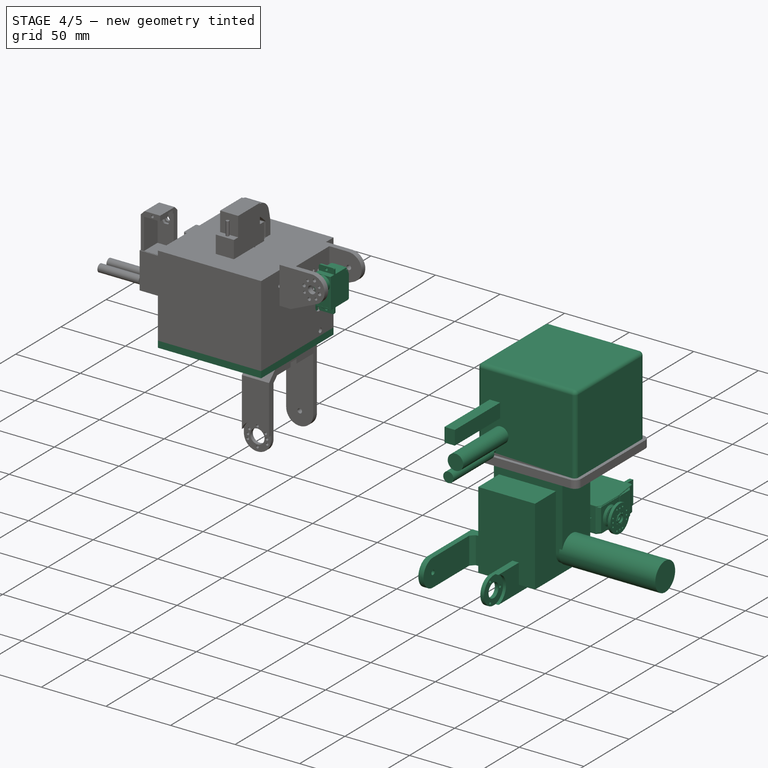
[diagram: stage 4 of 5 — iso view after this stage's code; geometry added in this stage tinted green]
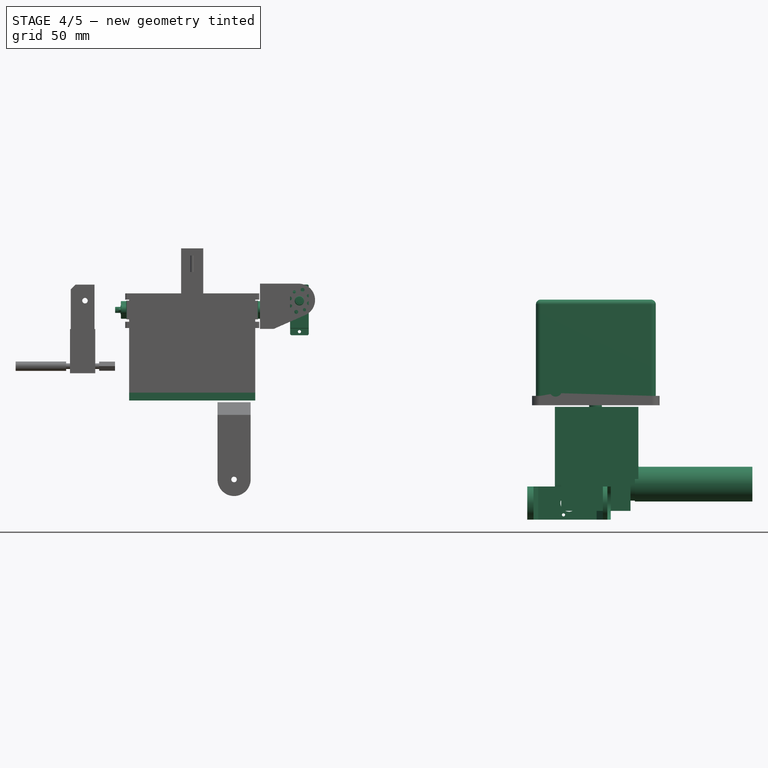
[diagram: stage 4 of 5 — front view after this stage's code; geometry added in this stage tinted green]
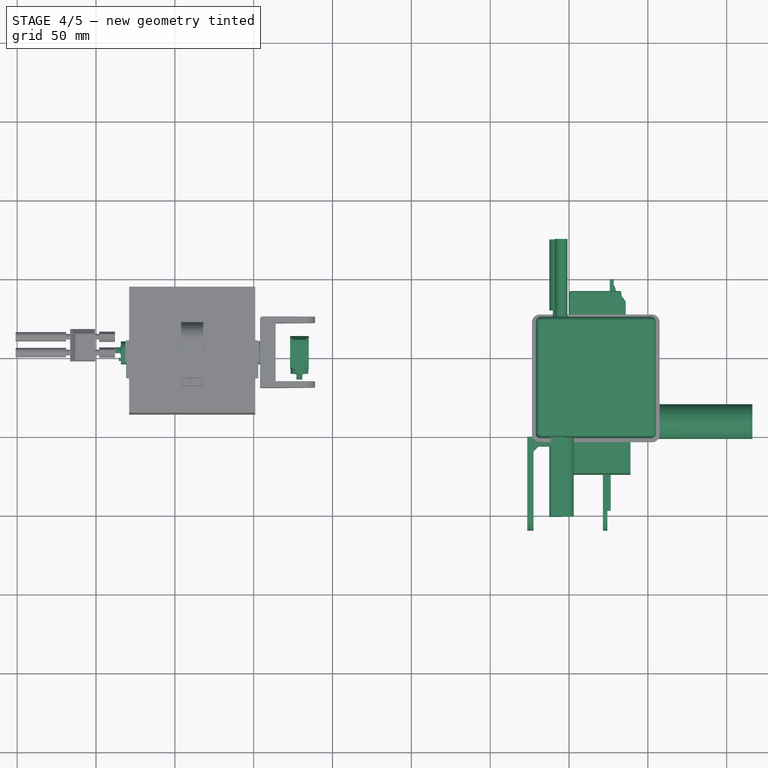
[diagram: stage 4 of 5 — top view after this stage's code; geometry added in this stage tinted green]
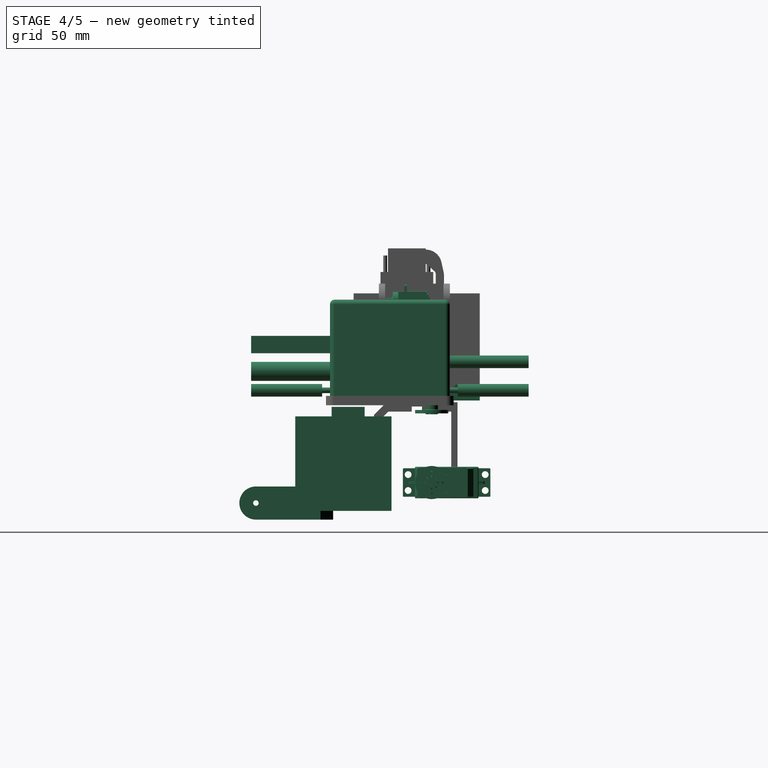
[diagram: stage 4 of 5 — right view after this stage's code; geometry added in this stage tinted green]
FEATURE [Part::Box] Box004  label="Cube004"
  Height = 60
  Length = 44
  Placement = pos=(-5,-24,-5) rot=(0,0,1;0rad)
  Width = 61
FEATURE [Part::Mirroring] Part__Mirroring  label="Servo-D1 (Mirror #1)"
  Base = (0,0,0)
  Normal = (0,1,0)
  Placement = pos=(0,72,0) rot=(0,0,1;0rad)
  Source = -> Part__Feature013
FEATURE [Part::Mirroring] Part__Mirroring001  label="Servo-D2 (Mirror #2)"
  Base = (0,0,0)
  Normal = (0,1,0)
  Placement = pos=(0,72,0) rot=(0,0,1;0rad)
  Source = -> Part__Feature014
FEATURE [Part::Cylinder] Cylinder002  label="Joint-D004"
  Angle = 360
  Height = 53
  Placement = pos=(-9,9.5,12) rot=(0,1,0;1.5708rad)
  Radius = 10.5
FEATURE [Part::MultiFuse] Fusion
  Shapes = -> [Cylinder002]
FEATURE [Part::Cylinder] Cylinder006  label="Joint-D008"
  Angle = 360
  Height = 74.5
  Placement = pos=(41.8,9.5,12) rot=(0,1,0;1.5708rad)
  Radius = 11
FEATURE [PartDesign::Fillet] Fillet011  label="horn"
  Placement = pos=(38.5,9.5,13) rot=(0,0,-1;1.5708rad)
  Radius = 0.5
FEATURE [PartDesign::Fillet] Fillet012  label="horn001"
  Placement = pos=(16.8,9.5,62.5) rot=(-0.57735,0.57735,-0.57735;2.0944rad)
  Radius = 0.5
FEATURE [Part::Mirroring] Part__Mirroring003  label="horn (Mirror #4)"
  Base = (41.6,1.90735e-06,13)
  Normal = (0,1,-1.19209e-07)
  Placement = pos=(0,72,0) rot=(0,0,1;0rad)
  Source = -> Fillet011
FEATURE [Part::Mirroring] Part__Mirroring004  label="horn001 (Mirror #5)"
  Base = (16.8,7.62939e-06,59.3998)
  Normal = (0,1,-1.19209e-07)
  Placement = pos=(0,72,0) rot=(0,0,1;0rad)
  Source = -> Fillet012
FEATURE [Part::Box] Box035  label="Cube035"
  Height = 68
  Length = 6
  Placement = pos=(-23.5,17,68) rot=(0,0,1;0rad)
  Width = 38
FEATURE [Part::Box] Box038  label="Cube037"
  Height = 11
  Length = 8
  Placement = pos=(-11.5,-52,95) rot=(0,0,1;0rad)
  Width = 58
FEATURE [Part::Cylinder] Cylinder042  label="Cylinder096"
  Angle = 360
  Height = 61
  Placement = pos=(-5,124,89.6) rot=(1,0,0;1.5708rad)
  Radius = 4
FEATURE [Part::Cylinder] Cylinder043  label="Cylinder097"
  Angle = 360
  Height = 63
  Placement = pos=(-3,11,83.5) rot=(1,0,0;1.5708rad)
  Radius = 6
FEATURE [Part::Box] Box039  label="Cube038"
  Height = 66
  Length = 76
  Placement = pos=(-21,-2,63) rot=(0,0,1;0rad)
  Width = 76
FEATURE [Part::Cylinder] Cylinder044  label="Cylinder098"
  Angle = 360
  Height = 23
  Placement = pos=(-8.5,1,71.5) rot=(1,0,0;1.5708rad)
  Radius = 1.75
FEATURE [Part::Cylinder] Cylinder045  label="Cylinder099"
  Angle = 360
  Height = 31
  Placement = pos=(-8.5,94,71.5) rot=(1,0,0;1.5708rad)
  Radius = 1.75
FEATURE [Part::Fillet] Fillet018007
  Base = -> Box039
  Edges = 8 edges r=3: [Edge1,Edge2,Edge3,Edge5,Edge6,Edge7,Edge10,Edge12]
FEATURE [Part::Box] Box040  label="Cube039"
  Height = 6
  Length = 81
  Placement = pos=(-23.5,-4.5,63) rot=(0,0,1;0rad)
  Width = 81
FEATURE [Part::Fillet] Fillet018008
  Base = -> Box040
  Edges = 4 edges r=5: [Edge1,Edge3,Edge5,Edge7]
  Placement = pos=(0,0,-1) rot=(0,0,1;0rad)
FEATURE [Part::Cylinder] Cylinder046  label="Cylinder100"
  Angle = 360
  Height = 45
  Placement = pos=(-8.5,-7,71.5) rot=(1,0,0;1.5708rad)
  Radius = 4
FEATURE [Part::Cylinder] Cylinder047  label="Cylinder101"
  Angle = 360
  Height = 45
  Placement = pos=(-8.5,124,71.5) rot=(1,0,0;1.5708rad)
  Radius = 4
FEATURE [Part::MultiFuse] Fusion033
  Shapes = -> [Fillet018007,Fillet018008]
FEATURE [Part::MultiFuse] Fusion034  label="corte-positivo"
  Shapes = -> [Fusion033,Cylinder042,Cylinder047,Cylinder045,Cylinder046,Cylinder043,Box038,Cylinder044]
FEATURE [Part::MultiFuse] Fusion038
  Placement = pos=(14,0,0) rot=(0,0,1;0rad)
  Shapes = -> [Cylinder053,Cylinder040,Cylinder041,Cylinder]
FEATURE [Part::Cut] Cut067
  Base = -> Fusion040
  Tool = -> Fusion038
FEATURE [Part::Cut] Cut068
  Base = -> Cut067
  Tool = -> Box035
FEATURE [Sketcher::SketchObject] Sketch001  label="leg-sketch-1"
  Placement = pos=(0,0,0) rot=(0.57735,0.57735,0.57735;2.0944rad)
  sketch-geometry (5):
    g0: LineSegment StartX=-49 StartY=10.5 StartZ=0 EndX=0 EndY=10.5 EndZ=0
    g1: LineSegment StartX=0 StartY=10.5 StartZ=0 EndX=0 EndY=-10.5 EndZ=0
    g2: LineSegment StartX=0 StartY=-10.5 StartZ=0 EndX=-49 EndY=-10.5 EndZ=0
    g3: LineSegment [constr] StartX=-49 StartY=-10.5 StartZ=0 EndX=-49 EndY=10.5 EndZ=0
    g4: ArcOfCircle CenterX=-49 CenterY=0 CenterZ=0 NormalX=0 NormalY=0 NormalZ=1 Radius=10.5 StartAngle=1.5708 EndAngle=4.71239
  constraints (15):
    c: Coincident(g0,g1)
    c: Coincident(g1,g2)
    c: Coincident(g2,g3)
    c: Coincident(g3,g0)
    c: Horizontal(g0)
    c: Horizontal(g2)
    c: Vertical(g1)
    c: Vertical(g3)
    c: PointOnObject(g4,g3)
    c: Coincident(g4,g0)
    c: Coincident(g4,g2)
    c: PointOnObject(g4,g-1)
    c: PointOnObject(g0,g-2)
    c: DistanceX(g0) = 49
    c: DistanceY(g1) = -21
FEATURE [PartDesign::Pad] Pad001  label="leg-block-1"
  Length = 53
  Length2 = 100
  Midplane = true
  Placement = pos=(0,0,0) rot=(0.57735,0.57735,0.57735;2.0944rad)
  Sketch = -> Sketch001
  Type = 0
FEATURE [Sketcher::SketchObject] Sketch002  label="leg-top-sketch"
  ExternalGeometry = -> [Pad001]
  Placement = pos=(0,0,10.5) rot=(0,0,-1;1.5708rad)
  Support = -> Pad001 [Face1]
  sketch-geometry (9):
    g0: LineSegment StartX=64 StartY=21.5 StartZ=0 EndX=10 EndY=21.5 EndZ=0
    g1: LineSegment StartX=6 StartY=17.5 StartZ=0 EndX=6 EndY=-19.5 EndZ=0
    g2: LineSegment StartX=9 StartY=-22.5 StartZ=0 EndX=64 EndY=-22.5 EndZ=0
    g3: LineSegment StartX=64 StartY=-22.5 StartZ=0 EndX=64 EndY=21.5 EndZ=0
    g4: LineSegment StartX=6 StartY=17.5 StartZ=0 EndX=10 EndY=21.5 EndZ=0
    g5: LineSegment [constr] StartX=6 StartY=17.5 StartZ=0 EndX=6 EndY=21.5 EndZ=0
    g6: LineSegment StartX=6 StartY=-19.5 StartZ=0 EndX=9 EndY=-22.5 EndZ=0
    g7: LineSegment [constr] StartX=9 StartY=-22.5 StartZ=0 EndX=6 EndY=-22.5 EndZ=0
    g8: LineSegment [constr] StartX=6 StartY=-22.5 StartZ=0 EndX=6 EndY=-19.5 EndZ=0
  constraints (26):
    c: Coincident(g2,g3)
    c: Coincident(g3,g0)
    c: Horizontal(g0)
    c: Horizontal(g2)
    c: Vertical(g1)
    c: Vertical(g3)
    c: DistanceY(g-3,g5) = -5
    c: DistanceY(g7,g-4) = -4
    c: Angle(g-2,g4) = 2.35619
    c: Coincident(g1,g4)
    c: Coincident(g5,g1)
    c: Vertical(g5)
    c: DistanceY(g1,g7) = -40
    c: DistanceX(g5,g-3) = -6
    c: Coincident(g0,g4)
    c: PointOnObject(g5,g0)
    c: DistanceX(g-3,g0) = 15
    c: Coincident(g2,g6)
    c: Coincident(g7,g2)
    c: Horizontal(g7)
    c: DistanceX(g7) = -3
    c: Coincident(g1,g6)
    c: Coincident(g8,g7)
    c: Coincident(g8,g1)
    c: Equal(g8,g7)
    c: Vertical(g8)
FEATURE [PartDesign::Pocket] Pocket  label="leg-block-2"
  Length = 5
  Placement = pos=(0,0,0) rot=(0.57735,0.57735,0.57735;2.0944rad)
  Sketch = -> Sketch002
  Type = 1
FEATURE [Sketcher::SketchObject] Sketch003  label="ankle-rounded-horn-sketch"
  ExternalGeometry = -> [Pocket]
  Placement = pos=(26.5,0,0) rot=(0.57735,0.57735,0.57735;2.0944rad)
  Support = -> Pocket [Face4]
  sketch-geometry (1):
    g0: Circle CenterX=-49 CenterY=0 CenterZ=0 NormalX=0 NormalY=0 NormalZ=1 Radius=10.75
  constraints (2):
    c: Coincident(g0,g-3)
    c: Radius(g0) = 10.75
FEATURE [PartDesign::Pocket] Pocket001  label="ankle-rounded-horn-cutout"
  Length = 2.2
  Placement = pos=(0,0,0) rot=(0.57735,0.57735,0.57735;2.0944rad)
  Sketch = -> Sketch003
  Type = 0
FEATURE [Sketcher::SketchObject] Sketch004  label="ankle-rear-shaft-drill-sketch"
  ExternalGeometry = -> [Pocket001]
  Placement = pos=(-26.5,0,0) rot=(0.57735,0.57735,-0.57735;4.18879rad)
  Support = -> Pocket001 [Face2]
  sketch-geometry (1):
    g0: Circle CenterX=-49 CenterY=0 CenterZ=0 NormalX=0 NormalY=0 NormalZ=1 Radius=1.75
  constraints (2):
    c: Coincident(g0,g-3)
    c: Radius(g0) = 1.75
FEATURE [PartDesign::Pocket] Pocket002  label="ankle-rear-shaft-drill"
  Length = 0
  Placement = pos=(0,0,0) rot=(0.57735,0.57735,0.57735;2.0944rad)
  Sketch = -> Sketch004
  Type = 2
FEATURE [Sketcher::SketchObject] Sketch005  label="hip-rounded-horn-cutout-sketch"
  Placement = pos=(0,-6,0) rot=(-0.57735,-0.57735,0.57735;4.18879rad)
  Support = -> Pocket002 [Face10]
  sketch-geometry (1):
    g0: Circle CenterX=0 CenterY=0 CenterZ=0 NormalX=0 NormalY=0 NormalZ=1 Radius=11
  constraints (2):
    c: Coincident(g0,g-1)
    c: Radius(g0) = 11
FEATURE [PartDesign::Pocket] Pocket003  label="hip-rounded-horn-cutout"
  Length = 3.3
  Placement = pos=(0,0,0) rot=(0.57735,0.57735,0.57735;2.0944rad)
  Sketch = -> Sketch005
  Type = 0
FEATURE [Sketcher::SketchObject] Sketch006  label="horn-side-chamfer-sketch"
  ExternalGeometry = -> [Pocket003]
  Placement = pos=(0,0,10.5) rot=(0,0,-1;1.5708rad)
  Support = -> Pocket003 [Face1]
  sketch-geometry (3):
    g0: LineSegment StartX=0 StartY=18.5 StartZ=0 EndX=8 EndY=26.5 EndZ=0
    g1: LineSegment StartX=0 StartY=18.5 StartZ=0 EndX=0 EndY=26.5 EndZ=0
    g2: LineSegment StartX=0 StartY=26.5 StartZ=0 EndX=8 EndY=26.5 EndZ=0
  constraints (8):
    c: PointOnObject(g0,g-2)
    c: PointOnObject(g0,g-3)
    c: Angle(g-2,g0) = 2.35619
    c: DistanceY(g-3,g0) = -8
    c: Coincident(g0,g1)
    c: Coincident(g1,g-3)
    c: Coincident(g1,g2)
    c: Coincident(g2,g0)
FEATURE [PartDesign::Pocket] Pocket004  label="horn-side-chamfer"
  Length = 5
  Placement = pos=(0,0,0) rot=(0.57735,0.57735,0.57735;2.0944rad)
  Sketch = -> Sketch006
  Type = 1
FEATURE [Part::Cylinder] Cylinder054  label="servo-shaft-drill"
  Angle = 360
  Height = 20
  Placement = pos=(0,10,0) rot=(1,0,0;1.5708rad)
  Radius = 5.5
FEATURE [Part::Cylinder] Cylinder055  label="servo-horn-small-drill-master"
  Angle = 360
  Height = 20
  Placement = pos=(-3.5,10,7.5) rot=(1,0,0;1.5708rad)
  Radius = 1
FEATURE [Part::FeaturePython] Clone001  label="Clone of servo-horn-small-drill-master"  # Draft clone (typed FeaturePython)
  Objects = -> [Cylinder055]
  Placement = pos=(7.35,10,-2.33815e-06) rot=(1,0,0;1.5708rad)
  Scale = (1,1,1)
FEATURE [Part::FeaturePython] Clone002  label="Clone of servo-horn-small-drill-master001"  # Draft clone (typed FeaturePython)
  Objects = -> [Cylinder055]
  Placement = pos=(-3.5,10,-7.5) rot=(1,0,0;1.5708rad)
  Scale = (1,1,1)
FEATURE [Part::MultiFuse] Fusion041  label="servo-Drills-block1-master"
  Shapes = -> [Clone001,Clone002,Cylinder055,Cylinder054]
FEATURE [Part::FeaturePython] Clone003  label="Clone of servo-Drills-block1-master"  # Draft clone (typed FeaturePython)
  Objects = -> [Fusion041]
  Placement = pos=(22,-49,6.96015e-06) rot=(0,0,1;1.5708rad)
  Scale = (1,1,1)
FEATURE [Part::MultiFuse] Fusion042  label="Servo-horn-drills"
  Shapes = -> [Fusion041,Clone003]
FEATURE [Part::Cut] Cut070  label="Leg"
  Base = -> Pocket004
  Tool = -> Fusion042
FEATURE [App::DocumentObjectGroup] Group007  label="Leg-src"
  Group = -> [Pad001,Pocket,Pocket001,Pocket002,Pocket003,Cut070]
FEATURE [App::DocumentObjectGroup] Group006  label="src"
  Group = -> [Group007]
FEATURE [Part::Feature] Fusion043  label="soft-drink-can"
  Placement = pos=(-397.85,47.19,0) rot=(0,0,-1;1.5708rad)
  shape: bbox 66.1 x 66.1 x 115.2 mm, 53 faces (baked)
FEATURE [App::DocumentObjectGroup] Group018  label="development"
  Group = -> [Group006]
FEATURE [Part::Fillet] Fillet018013  label="chass"
  Base = -> Cut068
  Edges = 4 edges r=3: [Edge75,Edge118,Edge216,Edge229]
FEATURE [Part::MultiFuse] Fusion045  label="servo-src"
  Placement = pos=(23,4.5,120) rot=(0,0.707107,-0.707107;3.14159rad)
  Shapes = -> [Part__Feature,Part__Feature004,Part__Feature005]
FEATURE [Part::FeaturePython] Clone007  label="microservo"  # Draft clone (typed FeaturePython)
  Objects = -> [Fusion045]
  Placement = pos=(-207.5,47,122.5) rot=(0.57735,0.57735,0.57735;2.0944rad)
  Scale = (1,1,1)
FEATURE [Part::FeaturePython] Clone008  label="microservo001"  # Draft clone (typed FeaturePython)
  Objects = -> [Fusion045]
  Placement = pos=(-270.5,47,122.5) rot=(0.57735,0.57735,-0.57735;4.18879rad)
  Scale = (1,1,1)
FEATURE [Part::FeaturePython] Clone009  label="microservo002"  # Draft clone (typed FeaturePython)
  Objects = -> [Fusion045]
  Placement = pos=(-307,51.5,122.5) rot=(0.57735,-0.57735,0.57735;2.0944rad)
  Scale = (1,1,1)
FEATURE [Part::FeaturePython] Clone011  label="microservo003"  # Draft clone (typed FeaturePython)
  Objects = -> [Clone009]
  Placement = pos=(-171,51.5,122.5) rot=(0.57735,-0.57735,0.57735;2.0944rad)
  Scale = (1,1,1)
FEATURE [Part::FeaturePython] Clone022  label="head-servo"  # Draft clone (typed FeaturePython)
  Objects = -> [Clone009]
  Placement = pos=(-239,46.75,151) rot=(0.707107,0.707107,0;3.14159rad)
  Scale = (1,1,1)
FEATURE [Part::Cut] Cut113  label="chassis-src"
  Base = -> Fillet018013
  Placement = pos=(-275,70,2) rot=(0,0,-1;1.5708rad)
  Tool = -> Pad013
FEATURE [Part::FeaturePython] Clone025  label="Clone of chassis-src"  # Draft clone (typed FeaturePython)
  Objects = -> [Cut113]
  Placement = pos=(-275,70,2) rot=(0,0,-1;1.5708rad)
  Scale = (1,1,1)
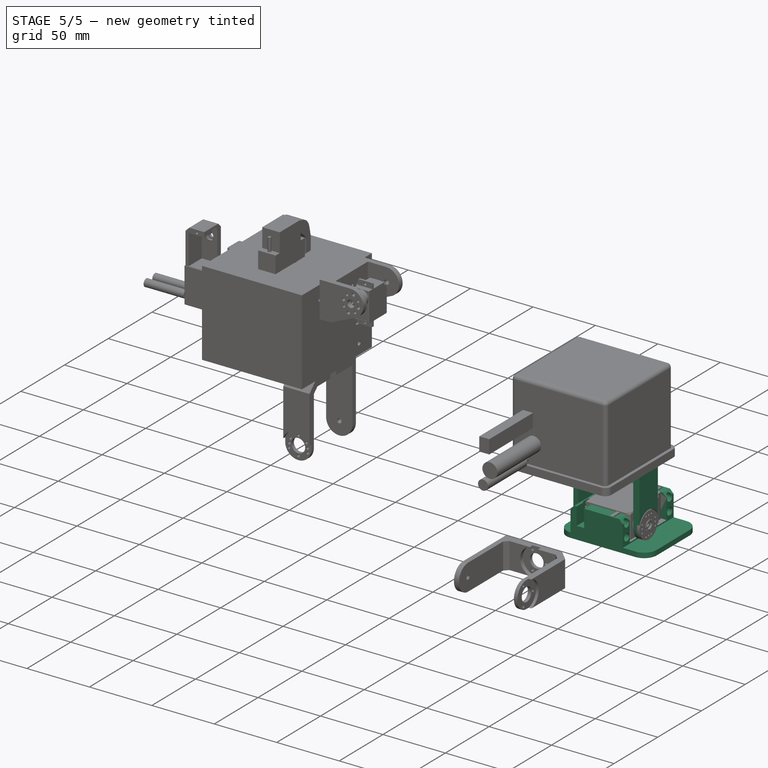
[diagram: stage 5 of 5 — iso view after this stage's code; geometry added in this stage tinted green]
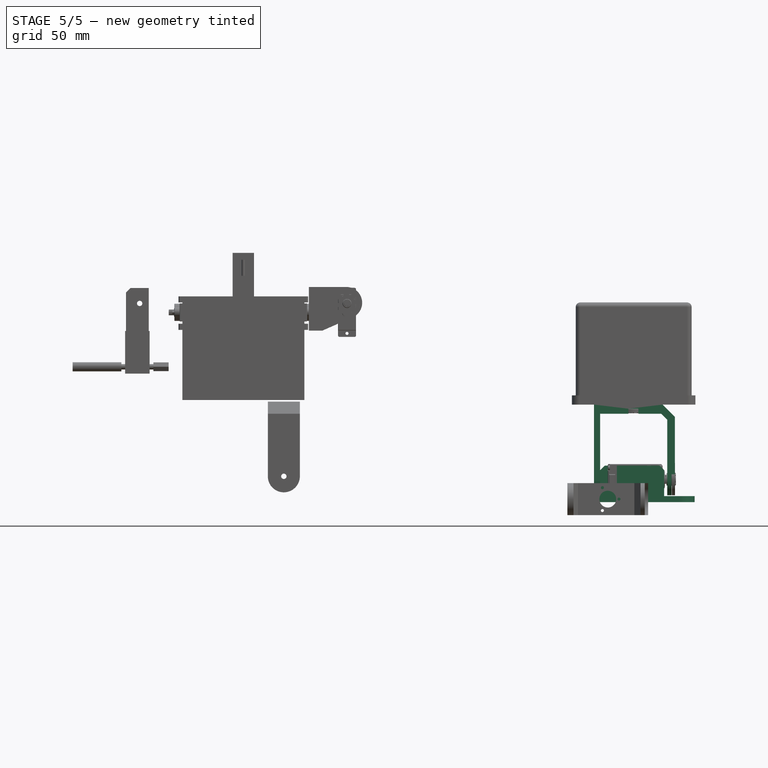
[diagram: stage 5 of 5 — front view after this stage's code; geometry added in this stage tinted green]
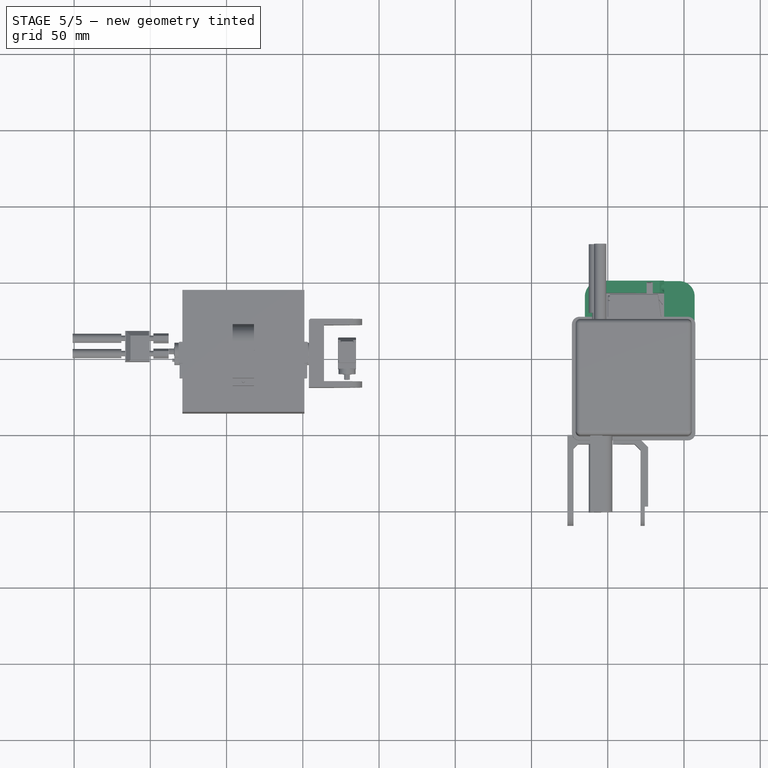
[diagram: stage 5 of 5 — top view after this stage's code; geometry added in this stage tinted green]
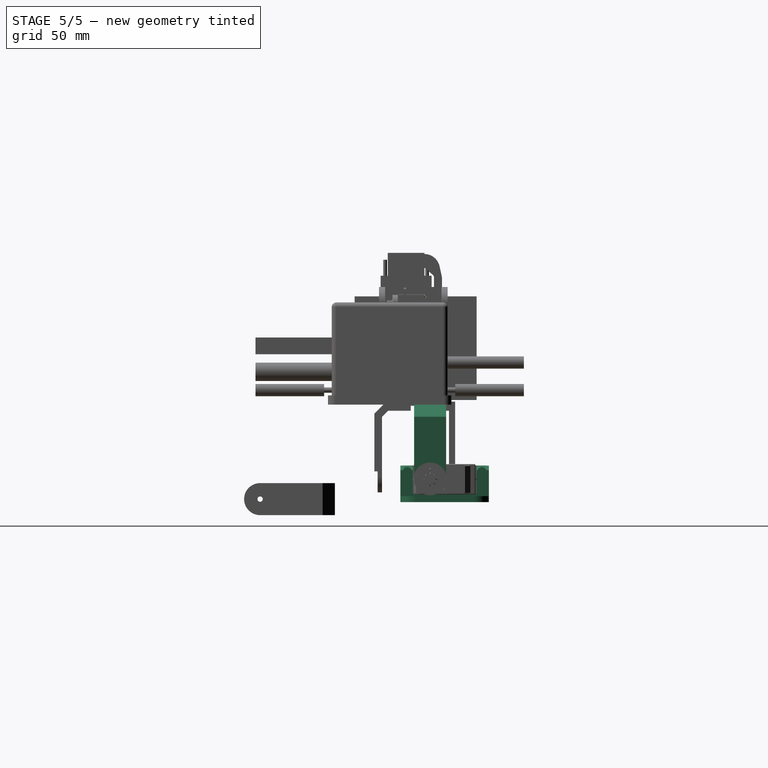
[diagram: stage 5 of 5 — right view after this stage's code; geometry added in this stage tinted green]
FEATURE [Part::Feature] Part__Feature013  label="Servo-D1"
  Placement = pos=(26.5,9.5,100.6) rot=(0,1,0;3.14159rad)
  shape: bbox 55.5 x 20 x 41.74 mm, 365 faces (baked)
FEATURE [Part::Feature] Part__Feature014  label="Servo-D2"
  Placement = pos=(0,0,13) rot=(0.57735,0.57735,0.57735;2.0944rad)
  shape: bbox 41.74 x 55.5 x 20 mm, 365 faces (baked)
FEATURE [Part::Feature] Part__Feature008  label="J1"
  Placement = pos=(-10.8,44.37,77.54) rot=(0.707107,0.707107,0;3.14159rad)
  shape: bbox 11.7 x 15.49 x 2.5 mm, 224 faces (baked)
FEATURE [Part::Feature] Part__Feature009  label="J2"
  Placement = pos=(-10.8,62.15,77.54) rot=(0.707107,0.707107,0;3.14159rad)
  shape: bbox 11.7 x 15.49 x 2.5 mm, 224 faces (baked)
FEATURE [Part::Feature] Part__Feature007  label="J4"
  Placement = pos=(-10.8,59.6199,125.78) rot=(0,0,-1;1.5708rad)
  shape: bbox 11.65 x 20.57 x 2.5 mm, 290 faces (baked)
FEATURE [Part::Feature] Part__Feature010  label="J16"
  Placement = pos=(-9.55,7.19908,100.417) rot=(0.57735,0.57735,-0.57735;2.0944rad)
  shape: bbox 2.94 x 5.43 x 7.98 mm, 414 faces, 0 solids (baked)
FEATURE [Part::Feature] Part__Feature005  label="PCB"
  Placement = pos=(-12.3914,5,75) rot=(0.57735,0.57735,0.57735;2.0944rad)
  shape: bbox 1.591 x 68.6 x 53.36 mm, 426 faces (baked)
FEATURE [Part::Feature] Part__Feature004  label="J010"
  Placement = pos=(-10.8,14.8841,83.3059) rot=(0.707107,0.707107,0;3.14159rad)
  shape: bbox 10.92 x 14.61 x 8.89 mm, 41 faces (baked)
FEATURE [Part::Feature] Part__Feature011  label="U1"
  Placement = pos=(-9.2,12.159,115.511) rot=(0.57735,-0.57735,-0.57735;2.0944rad)
  shape: bbox 2.435 x 26.9 x 13 mm, 503 faces (baked)
FEATURE [Part::Feature] Part__Feature006  label="J8"
  Placement = pos=(-10.8,37.7759,125.78) rot=(0,0,-1;1.5708rad)
  shape: bbox 11.65 x 20.57 x 2.5 mm, 290 faces (baked)
FEATURE [App::DocumentObjectGroup] Group001  label="placa"
  Group = -> [Part__Feature008,Part__Feature009,Part__Feature007,Part__Feature010,Part__Feature005,Part__Feature004,Part__Feature011,Part__Feature006]
FEATURE [Part::Box] Box  label="Cube"
  Height = 24
  Length = 72
  Placement = pos=(-15,-29,-3) rot=(0,0,1;0rad)
  Width = 58
FEATURE [Part::Box] Box001  label="Cube001"
  Height = 25
  Length = 47
  Placement = pos=(-1,-21,2) rot=(0,0,1;0rad)
  Width = 42
FEATURE [Part::Box] Box002  label="Cube002"
  Height = 38
  Length = 28
  Placement = pos=(37,-45,1) rot=(0,0,1;0rad)
  Width = 88
FEATURE [Part::Box] Box003  label="Cube003"
  Height = 38
  Length = 28
  Placement = pos=(-33,-45,1) rot=(0,0,1;0rad)
  Width = 88
FEATURE [Part::Cut] Cut
  Base = -> Box
  Tool = -> Box001
FEATURE [Part::Cut] Cut001
  Base = -> Cut
  Tool = -> Box002
FEATURE [Part::Cut] Cut002
  Base = -> Cut001
  Tool = -> Box003
FEATURE [Part::Cylinder] Cylinder003  label="Joint-D005"
  Angle = 360
  Height = 74.5
  Placement = pos=(-22,9.5,12) rot=(0,1,0;1.5708rad)
  Radius = 1.75
FEATURE [Part::Fillet] Fillet
  Base = -> Cut002
  Edges = 4 edges r=10: [Edge1,Edge3,Edge5,Edge14]
FEATURE [Part::Cylinder] Cylinder004  label="Joint-D006"
  Angle = 360
  Height = 74.5
  Placement = pos=(16,9.5,12) rot=(0,1,0;1.5708rad)
  Radius = 5.5
FEATURE [Part::Cut] Cut003
  Base = -> Fusion
  Tool = -> Box004
FEATURE [Part::Cylinder] Cylinder005  label="Joint-D007"
  Angle = 360
  Height = 74.5
  Placement = pos=(-51,9.5,12) rot=(0,1,0;1.5708rad)
  Radius = 1.75
FEATURE [Part::Cut] Cut004
  Base = -> Cut003
  Tool = -> Cylinder004
FEATURE [Part::Cut] Cut005
  Base = -> Cut004
  Tool = -> Cylinder005
FEATURE [Part::Cut] Cut006
  Base = -> Cut005
  Tool = -> Cylinder006
FEATURE [Part::Cylinder] Cylinder007  label="Joint-D009"
  Angle = 360
  Height = 23.5
  Placement = pos=(16.8,9.5,58.3) rot=(0,1,0;3.14159rad)
  Radius = 11
FEATURE [Part::MultiFuse] Fusion001
  Shapes = -> [Cylinder009,Cylinder008]
FEATURE [Part::MultiFuse] Fusion002
  Placement = pos=(0,0,10) rot=(0,0,1;0rad)
  Shapes = -> [Cylinder009,Cylinder008]
FEATURE [Part::MultiFuse] Fusion003
  Placement = pos=(0,49,0) rot=(0,0,1;0rad)
  Shapes = -> [Cylinder009,Cylinder008]
FEATURE [Part::MultiFuse] Fusion004
  Placement = pos=(0,49,10) rot=(0,0,1;0rad)
  Shapes = -> [Cylinder009,Cylinder008]
FEATURE [Part::Box] Box006  label="Cube006"
  Height = 21
  Length = 4
  Placement = pos=(25.5,-28,2) rot=(0,0,1;0rad)
  Width = 56
FEATURE [Part::Cylinder] Cylinder010  label="Joint-D012"
  Angle = 360
  Height = 74.5
  Placement = pos=(17,9.5,12) rot=(0,0,1;0rad)
  Radius = 5.5
FEATURE [Part::Box] Box007  label="Cube007"
  Height = 6
  Length = 3
  Placement = pos=(18.5,-28,4) rot=(0,0,1;0rad)
  Width = 56
FEATURE [Part::Box] Box008  label="Cube008"
  Height = 6
  Length = 3
  Placement = pos=(18.5,-28,14) rot=(0,0,1;0rad)
  Width = 56
FEATURE [Part::Cylinder] Cylinder011  label="Joint-D013"
  Angle = 360
  Height = 74.5
  Placement = pos=(-3,9.5,12) rot=(0,1,0;1.5708rad)
  Radius = 2.75
FEATURE [Part::Cylinder] Cylinder021  label="Joint-D014"
  Angle = 360
  Height = 52.5
  Placement = pos=(19,9.5,20.35) rot=(0,1,0;1.5708rad)
  Radius = 1
FEATURE [Part::Cylinder] Cylinder022  label="Joint-D015"
  Angle = 360
  Height = 52.5
  Placement = pos=(19,2,9.5) rot=(0,1,0;1.5708rad)
  Radius = 1
FEATURE [Part::Cylinder] Cylinder023  label="Joint-D016"
  Angle = 360
  Height = 52.5
  Placement = pos=(19,17,9.5) rot=(0,1,0;1.5708rad)
  Radius = 1
FEATURE [Part::MultiFuse] Fusion017
  Placement = pos=(0,0,-1) rot=(0,0,1;0rad)
  Shapes = -> [Cylinder022,Cylinder021,Cylinder023]
FEATURE [Part::MultiFuse] Fusion018
  Placement = pos=(4,0,101) rot=(0,1,0;1.5708rad)
  Shapes = -> [Cylinder022,Cylinder021,Cylinder023]
FEATURE [Part::Chamfer] Chamfer
  Base = -> Fillet
  Edges = 3 edges r=3: [Edge18,Edge33,Edge37]
FEATURE [Part::Cut] Cut008
  Base = -> Chamfer
  Tool = -> Cylinder003
FEATURE [Part::Cut] Cut010
  Base = -> Cut008
  Tool = -> Box006
FEATURE [Part::Cut] Cut011
  Base = -> Cut010
  Tool = -> Box008
FEATURE [Part::Cut] Cut012
  Base = -> Cut011
  Tool = -> Box007
FEATURE [Part::Cut] Cut013
  Base = -> Cut012
  Tool = -> Fusion004
FEATURE [Part::Cut] Cut014
  Base = -> Cut013
  Tool = -> Fusion003
FEATURE [Part::Cut] Cut015
  Base = -> Cut014
  Tool = -> Fusion002
FEATURE [Part::Cut] Cut016
  Base = -> Cut015
  Tool = -> Fusion001
FEATURE [Part::Cut] Cut017  label="pie"
  Base = -> Cut016
  Tool = -> Cylinder011
FEATURE [Part::Box] Box024  label="Cube024"
  Height = 23
  Length = 6
  Placement = pos=(0,19,7) rot=(0,0,1;0rad)
  Width = 36
FEATURE [Part::Cut] Cut039  label="pie-D"
  Base = -> Cut017
  Placement = pos=(0,0,1) rot=(0,0,1;0rad)
  Tool = -> Box024
FEATURE [Part::Mirroring] Part__Mirroring006  label="pie-I"
  Base = (0,0,0)
  Normal = (0,1,0)
  Placement = pos=(0,72,0) rot=(0,0,1;0rad)
  Source = -> Cut039
FEATURE [Part::Cut] Cut044
  Base = -> Cut006
  Tool = -> Box004
FEATURE [Part::Cut] Cut045
  Base = -> Cut044
  Tool = -> Cylinder007
FEATURE [Part::Cut] Cut046
  Base = -> Cut045
  Tool = -> Fusion018
FEATURE [Part::Cut] Cut047
  Base = -> Cut046
  Tool = -> Fusion017
FEATURE [Part::Cut] Cut048
  Base = -> Cut047
  Placement = pos=(0,0,1) rot=(0,0,1;0rad)
  Tool = -> Cylinder010
FEATURE [Part::Chamfer] Chamfer001
  Base = -> Cut048
  Edges = 1 edges r=4: [Edge61]
FEATURE [Part::Chamfer] Chamfer002  label="pata-D"
  Base = -> Chamfer001
  Edges = 1 edges r=8: [Edge58]
FEATURE [Part::Mirroring] Part__Mirroring007  label="pata-I"
  Base = (17.5,3.8147e-06,32.25)
  Normal = (0,1,-1.19209e-07)
  Placement = pos=(0,72,0) rot=(0,0,1;0rad)
  Source = -> Chamfer002
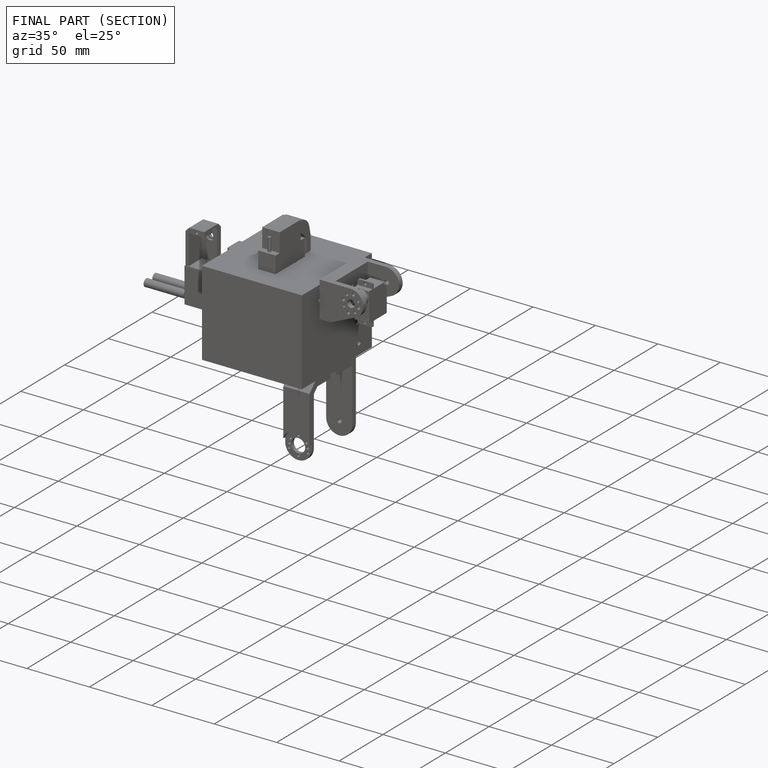
[diagram: finished part — half-section view (interior)]
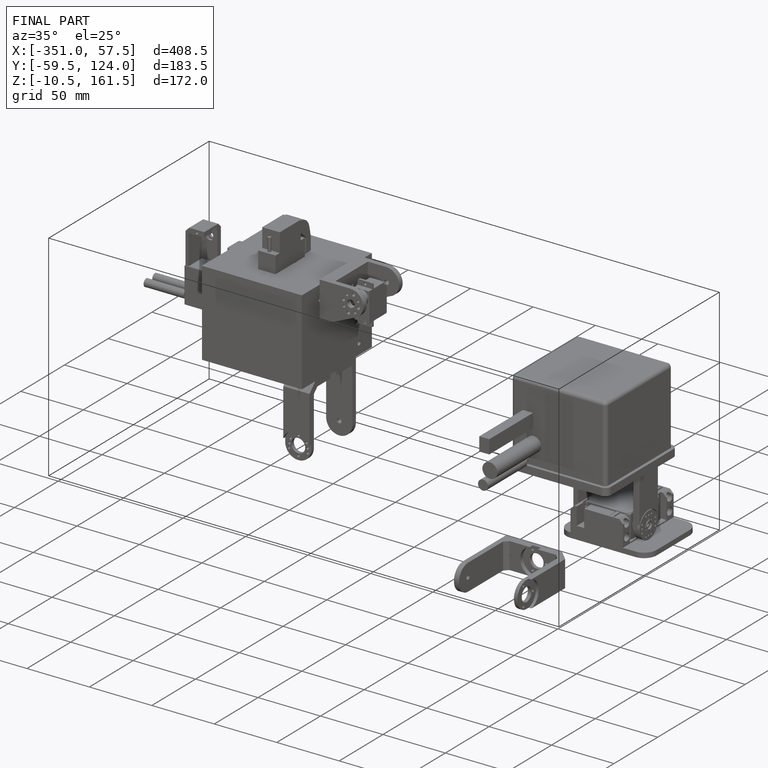
[diagram: finished part — iso view with bounding-box wireframe]
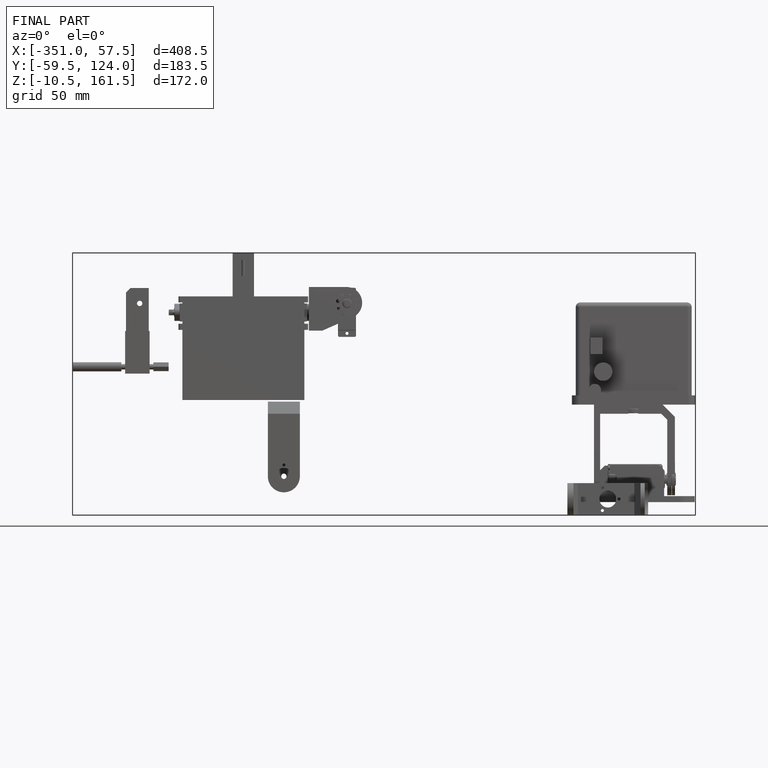
[diagram: finished part — front view with bounding-box wireframe]
